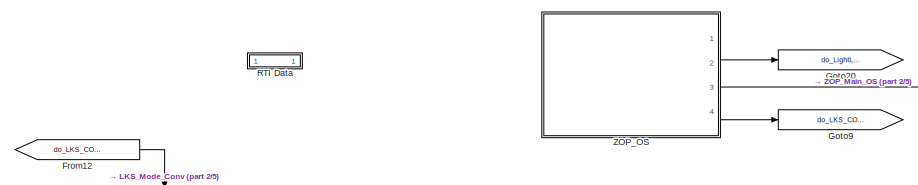
[diagram: root canvas - part 1/5, top center region]
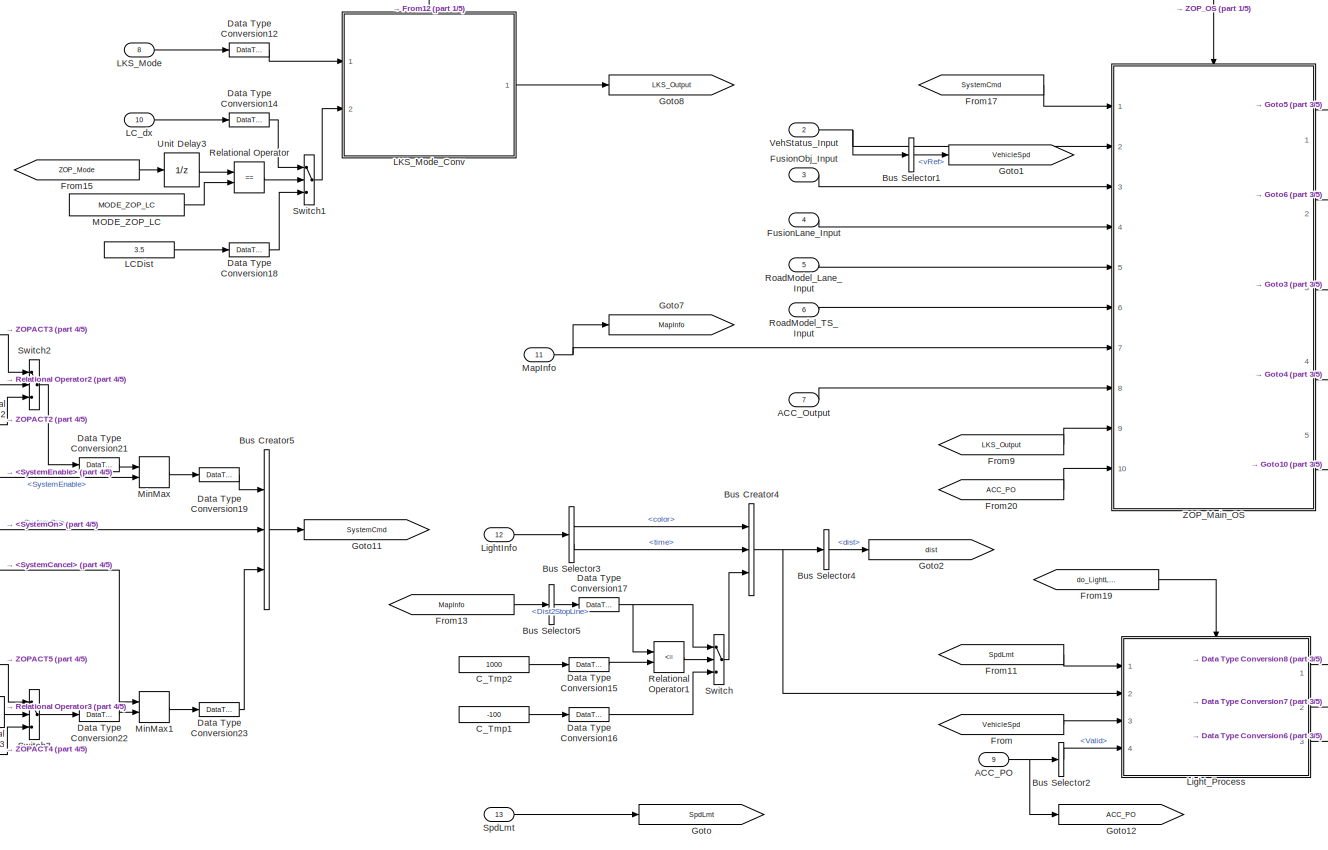
[diagram: root canvas - part 2/5, central region]
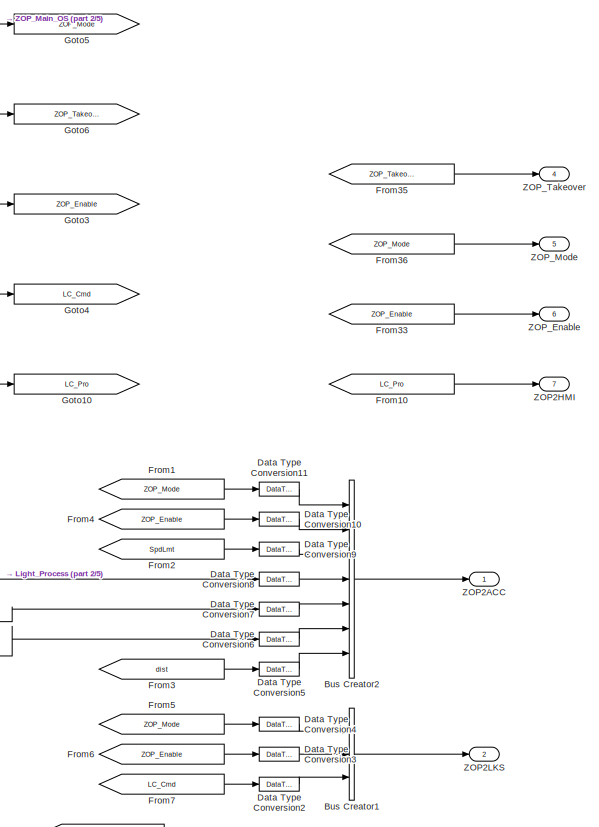
[diagram: root canvas - part 3/5, middle right region]
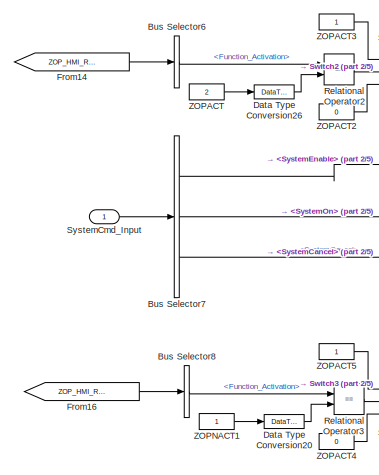
[diagram: root canvas - part 4/5, middle left region]
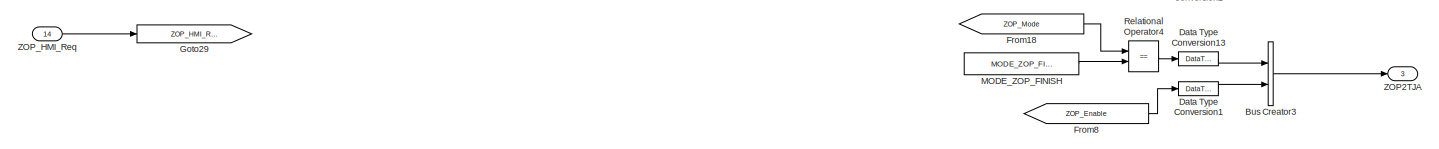
[diagram: root canvas - part 5/5, bottom center region]
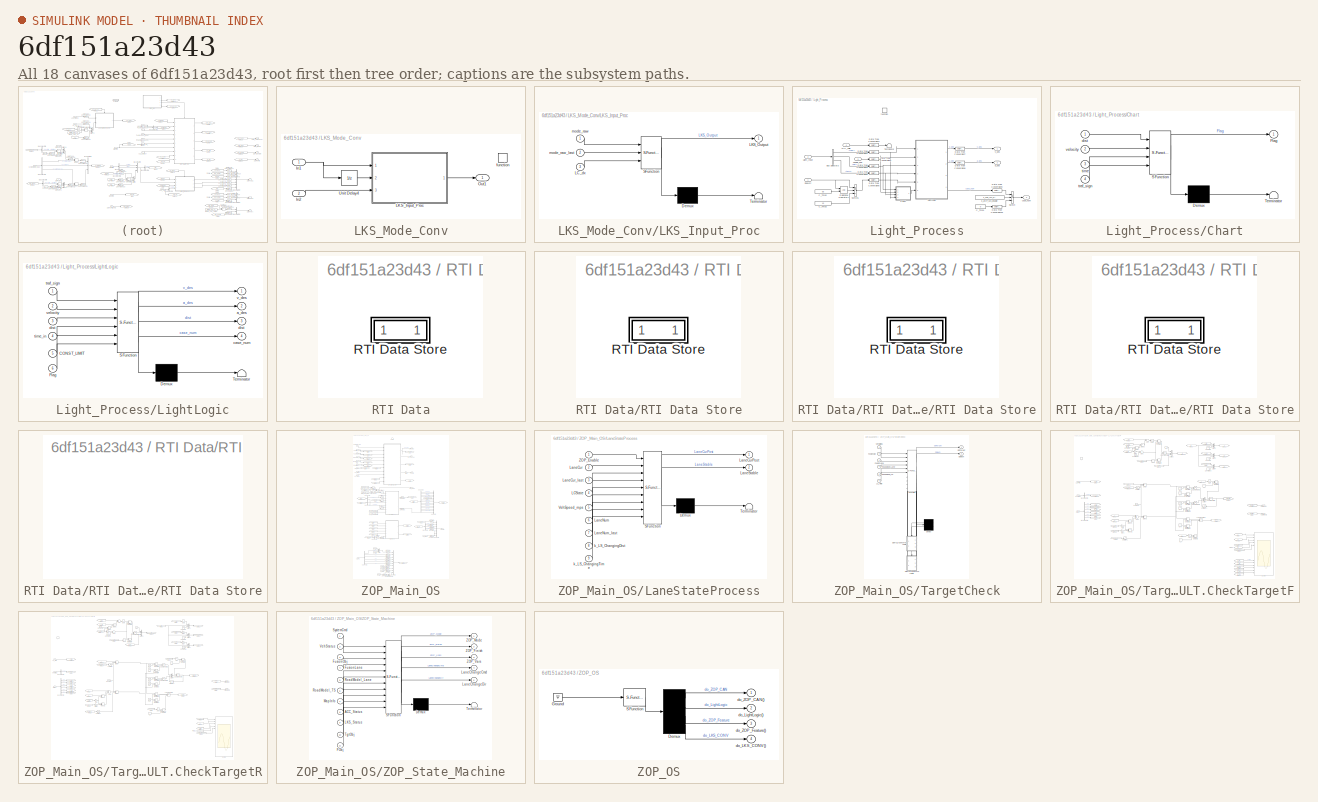
[diagram: thumbnail index - all 18 canvases of the model, root first then tree order]
MODEL slx_6df151a23d43
KIND model
CONFIG AbsTol = auto
CONFIG EnableMultiTasking = off
CONFIG FixedStep = 0.01
CONFIG MaxStep = auto
CONFIG MinStep = auto
CONFIG PostLoadFcn = if any(exist('dsrtsu_mdlpostloadfcn', 'file') ~= 0), dsrtsu_mdlpostloadfcn('Execute', bdroot); end
CONFIG RelTol = 1e-3
CONFIG SampleTimeConstraint = Unconstrained
CONFIG Solver = FixedStepDiscrete
CONFIG SolverName = FixedStepDiscrete
CONFIG StartTime = 0.0
CONFIG StopTime = inf
BLOCK [Inport] ACC_Output
  BusOutputAsStruct = on
  IconDisplay = Port number
  OutDataTypeStr = Bus: ACC_Status_ST
  Port = 7
BLOCK [Inport] ACC_PO
  BusOutputAsStruct = on
  IconDisplay = Port number
  OutDataTypeStr = Bus: ATS_PO_ST
  Port = 9
BLOCK [BusCreator] Bus Creator1
  DisplayOption = bar
  InheritFromInputs = off
  Inputs = 3
  NonVirtualBus = on
  OutDataTypeStr = Bus: ZOP2LCK
  Ports = [3, 1]
BLOCK [BusCreator] Bus Creator2
  DisplayOption = bar
  InheritFromInputs = off
  Inputs = 7
  NonVirtualBus = on
  OutDataTypeStr = Bus: ZOP2ACC
  Ports = [7, 1]
BLOCK [BusCreator] Bus Creator3
  DisplayOption = bar
  InheritFromInputs = off
  Inputs = 2
  NonVirtualBus = on
  OutDataTypeStr = Bus: ZOP2TJA
  Ports = [2, 1]
BLOCK [BusCreator] Bus Creator4
  DisplayOption = bar
  InheritFromInputs = off
  Inputs = 3
  NonVirtualBus = on
  OutDataTypeStr = Bus: Light_Info_ST
  Ports = [3, 1]
BLOCK [BusCreator] Bus Creator5
  DisplayOption = bar
  InheritFromInputs = off
  Inputs = 3
  NonVirtualBus = on
  OutDataTypeStr = Bus: SystemCmd_ST
  Ports = [3, 1]
BLOCK [BusSelector] Bus Selector1
  OutputAsBus = off
  OutputSignals = vRef
  Ports = [1, 1]
BLOCK [BusSelector] Bus Selector2
  OutputAsBus = off
  OutputSignals = Valid
  Ports = [1, 1]
BLOCK [BusSelector] Bus Selector3
  OutputAsBus = off
  OutputSignals = color,time
  Ports = [1, 2]
BLOCK [BusSelector] Bus Selector4
  OutputAsBus = off
  OutputSignals = dist
  Ports = [1, 1]
BLOCK [BusSelector] Bus Selector5
  OutputAsBus = off
  OutputSignals = Dist2StopLine
  Ports = [1, 1]
BLOCK [BusSelector] Bus Selector6
  OutputAsBus = off
  OutputSignals = Function_Activation
  Ports = [1, 1]
BLOCK [BusSelector] Bus Selector7
  OutputAsBus = off
  OutputSignals = SystemEnable,SystemOn,SystemCancel
  Ports = [1, 3]
BLOCK [BusSelector] Bus Selector8
  OutputAsBus = off
  OutputSignals = Function_Activation
  Ports = [1, 1]
BLOCK [Constant] C_Tmp1
  Value = -100
BLOCK [Constant] C_Tmp2
  Value = 1000
BLOCK [DataTypeConversion] Data Type Conversion1
  RndMeth = Floor
  SaturateOnIntegerOverflow = off
BLOCK [DataTypeConversion] Data Type Conversion10
  RndMeth = Floor
  SaturateOnIntegerOverflow = off
BLOCK [DataTypeConversion] Data Type Conversion11
  RndMeth = Floor
  SaturateOnIntegerOverflow = off
BLOCK [DataTypeConversion] Data Type Conversion12
  RndMeth = Floor
  SaturateOnIntegerOverflow = off
BLOCK [DataTypeConversion] Data Type Conversion13
  RndMeth = Floor
  SaturateOnIntegerOverflow = off
BLOCK [DataTypeConversion] Data Type Conversion14
  RndMeth = Floor
  SaturateOnIntegerOverflow = off
BLOCK [DataTypeConversion] Data Type Conversion15
  OutDataTypeStr = single
  RndMeth = Floor
  SaturateOnIntegerOverflow = off
BLOCK [DataTypeConversion] Data Type Conversion16
  OutDataTypeStr = single
  RndMeth = Floor
  SaturateOnIntegerOverflow = off
BLOCK [DataTypeConversion] Data Type Conversion17
  OutDataTypeStr = single
  RndMeth = Floor
  SaturateOnIntegerOverflow = off
BLOCK [DataTypeConversion] Data Type Conversion18
  RndMeth = Floor
  SaturateOnIntegerOverflow = off
BLOCK [DataTypeConversion] Data Type Conversion19
  OutDataTypeStr = uint8
  RndMeth = Floor
  SaturateOnIntegerOverflow = off
BLOCK [DataTypeConversion] Data Type Conversion2
  RndMeth = Floor
  SaturateOnIntegerOverflow = off
BLOCK [DataTypeConversion] Data Type Conversion20
  OutDataTypeStr = uint8
  RndMeth = Floor
  SaturateOnIntegerOverflow = off
BLOCK [DataTypeConversion] Data Type Conversion21
  OutDataTypeStr = uint8
  RndMeth = Floor
  SaturateOnIntegerOverflow = off
BLOCK [DataTypeConversion] Data Type Conversion22
  OutDataTypeStr = uint8
  RndMeth = Floor
  SaturateOnIntegerOverflow = off
BLOCK [DataTypeConversion] Data Type Conversion23
  OutDataTypeStr = uint8
  RndMeth = Floor
  SaturateOnIntegerOverflow = off
BLOCK [DataTypeConversion] Data Type Conversion26
  OutDataTypeStr = uint8
  RndMeth = Floor
  SaturateOnIntegerOverflow = off
BLOCK [DataTypeConversion] Data Type Conversion3
  RndMeth = Floor
  SaturateOnIntegerOverflow = off
BLOCK [DataTypeConversion] Data Type Conversion4
  RndMeth = Floor
  SaturateOnIntegerOverflow = off
BLOCK [DataTypeConversion] Data Type Conversion5
  RndMeth = Floor
  SaturateOnIntegerOverflow = off
BLOCK [DataTypeConversion] Data Type Conversion6
  RndMeth = Floor
  SaturateOnIntegerOverflow = off
BLOCK [DataTypeConversion] Data Type Conversion7
  RndMeth = Floor
  SaturateOnIntegerOverflow = off
BLOCK [DataTypeConversion] Data Type Conversion8
  RndMeth = Floor
  SaturateOnIntegerOverflow = off
BLOCK [DataTypeConversion] Data Type Conversion9
  RndMeth = Floor
  SaturateOnIntegerOverflow = off
BLOCK [From] From
  GotoTag = VehicleSpd
BLOCK [From] From1
  GotoTag = ZOP_Mode
BLOCK [From] From10
  GotoTag = LC_Pro
BLOCK [From] From11
  GotoTag = SpdLmt
BLOCK [From] From12
  GotoTag = do_LKS_CONV
BLOCK [From] From13
  GotoTag = MapInfo
BLOCK [From] From14
  GotoTag = ZOP_HMI_Req
BLOCK [From] From15
  GotoTag = ZOP_Mode
BLOCK [From] From16
  GotoTag = ZOP_HMI_Req
BLOCK [From] From17
  GotoTag = SystemCmd
BLOCK [From] From18
  GotoTag = ZOP_Mode
BLOCK [From] From19
  GotoTag = do_LightLogic
BLOCK [From] From2
  GotoTag = SpdLmt
BLOCK [From] From20
  GotoTag = ACC_PO
BLOCK [From] From3
  GotoTag = dist
BLOCK [From] From33
  GotoTag = ZOP_Enable
BLOCK [From] From35
  GotoTag = ZOP_Takeover
BLOCK [From] From36
  GotoTag = ZOP_Mode
BLOCK [From] From4
  GotoTag = ZOP_Enable
BLOCK [From] From5
  GotoTag = ZOP_Mode
BLOCK [From] From6
  GotoTag = ZOP_Enable
BLOCK [From] From7
  GotoTag = LC_Cmd
BLOCK [From] From8
  GotoTag = ZOP_Enable
BLOCK [From] From9
  GotoTag = LKS_Output
BLOCK [Inport] FusionLane_Input
  BusOutputAsStruct = on
  IconDisplay = Port number
  OutDataTypeStr = Bus: FUS_LANE_OUTPUT_ST
  Port = 4
BLOCK [Inport] FusionObj_Input
  BusOutputAsStruct = on
  IconDisplay = Port number
  OutDataTypeStr = Bus: FUS_OBJ_OUTPUT_ST
  Port = 3
BLOCK [Goto] Goto
  GotoTag = SpdLmt
BLOCK [Goto] Goto1
  GotoTag = VehicleSpd
BLOCK [Goto] Goto10
  GotoTag = LC_Pro
BLOCK [Goto] Goto11
  GotoTag = SystemCmd
BLOCK [Goto] Goto12
  GotoTag = ACC_PO
BLOCK [Goto] Goto2
  GotoTag = dist
BLOCK [Goto] Goto20
  GotoTag = do_LightLogic
BLOCK [Goto] Goto29
  GotoTag = ZOP_HMI_Req
BLOCK [Goto] Goto3
  GotoTag = ZOP_Enable
BLOCK [Goto] Goto4
  GotoTag = LC_Cmd
BLOCK [Goto] Goto5
  GotoTag = ZOP_Mode
BLOCK [Goto] Goto6
  GotoTag = ZOP_Takeover
BLOCK [Goto] Goto7
  GotoTag = MapInfo
BLOCK [Goto] Goto8
  GotoTag = LKS_Output
BLOCK [Goto] Goto9
  GotoTag = do_LKS_CONV
BLOCK [Constant] LCDist
  Value = 3.5
BLOCK [Inport] LC_dx
  BusOutputAsStruct = on
  IconDisplay = Port number
  Port = 10
BLOCK [Inport] LKS_Mode
  BusOutputAsStruct = on
  IconDisplay = Port number
  Port = 8
BLOCK [SubSystem] LKS_Mode_Conv
  Ports = [2, 1, 0, 1]
  RequestExecContextInheritance = off
BLOCK [Inport] LKS_Mode_Conv/In1
  IconDisplay = Port number
BLOCK [Inport] LKS_Mode_Conv/In2
  IconDisplay = Port number
  Port = 2
BLOCK [SubSystem] LKS_Mode_Conv/LKS_Input_Proc
  ErrorFcn = Stateflow.Translate.translate
  PermitHierarchicalResolution = ExplicitOnly
  Ports = [3, 1]
  RequestExecContextInheritance = off
  SFBlockType = MATLAB Function
  TreatAsAtomicUnit = on
BLOCK [Demux] LKS_Mode_Conv/LKS_Input_Proc/ Demux 
  Outputs = 1
  Ports = [1, 1]
BLOCK [S-Function] LKS_Mode_Conv/LKS_Input_Proc/ SFunction 
  EnableBusSupport = on
  FunctionName = sf_sfun
  PortCounts = [3 2]
  Ports = [3, 2]
  SFcnIsStateOwnerBlock = off
  SFunctionDeploymentMode = off
  Tag = Stateflow S-Function ZOP_Main_FObj 8
BLOCK [Terminator] LKS_Mode_Conv/LKS_Input_Proc/ Terminator 
BLOCK [Inport] LKS_Mode_Conv/LKS_Input_Proc/LC_dx
  IconDisplay = Port number
  Port = 3
BLOCK [Outport] LKS_Mode_Conv/LKS_Input_Proc/LKS_Output
  IconDisplay = Port number
BLOCK [Inport] LKS_Mode_Conv/LKS_Input_Proc/mode_raw
  IconDisplay = Port number
BLOCK [Inport] LKS_Mode_Conv/LKS_Input_Proc/mode_raw_last
  IconDisplay = Port number
  Port = 2
BLOCK [Outport] LKS_Mode_Conv/Out1
  IconDisplay = Port number
BLOCK [UnitDelay] LKS_Mode_Conv/Unit Delay4
  SampleTime = -1
BLOCK [TriggerPort] LKS_Mode_Conv/function
  Ports = []
  StatesWhenEnabling = held
  TriggerType = function-call
  VariantControl = Variant
BLOCK [Inport] LightInfo
  BusOutputAsStruct = on
  IconDisplay = Port number
  OutDataTypeStr = Bus: Light_Info_ST
  Port = 12
BLOCK [SubSystem] Light_Process
  Ports = [4, 3, 0, 1]
  RequestExecContextInheritance = off
BLOCK [Inport] Light_Process/ACC_Valid
  BusOutputAsStruct = on
  IconDisplay = Port number
  Port = 4
BLOCK [BusSelector] Light_Process/Bus Selector3
  OutputAsBus = off
  OutputSignals = color,dist,time
  Ports = [1, 3]
BLOCK [Constant] Light_Process/C_Tmp1
  Value = 0
BLOCK [Constant] Light_Process/C_Tmp2
  Value = 0.5
BLOCK [Constant] Light_Process/C_Tmp3
  Value = 15
BLOCK [SubSystem] Light_Process/Chart
  ErrorFcn = Stateflow.Translate.translate
  PermitHierarchicalResolution = ExplicitOnly
  Ports = [4, 1]
  RequestExecContextInheritance = off
  SFBlockType = Chart
  TreatAsAtomicUnit = on
BLOCK [Demux] Light_Process/Chart/ Demux 
  Outputs = 1
  Ports = [1, 1]
BLOCK [S-Function] Light_Process/Chart/ SFunction 
  EnableBusSupport = on
  FunctionName = sf_sfun
  PortCounts = [4 2]
  Ports = [4, 2]
  SFcnIsStateOwnerBlock = off
  SFunctionDeploymentMode = off
  Tag = Stateflow S-Function ZOP_Main_FObj 1
BLOCK [Terminator] Light_Process/Chart/ Terminator 
BLOCK [Outport] Light_Process/Chart/Flag
  IconDisplay = Port number
BLOCK [Inport] Light_Process/Chart/dist
  IconDisplay = Port number
BLOCK [Inport] Light_Process/Chart/time
  IconDisplay = Port number
  Port = 3
BLOCK [Inport] Light_Process/Chart/traf_sign
  IconDisplay = Port number
  Port = 4
BLOCK [Inport] Light_Process/Chart/velocity
  IconDisplay = Port number
  Port = 2
BLOCK [DataTypeConversion] Light_Process/Data Type Conversion1
  OutDataTypeStr = double
  RndMeth = Floor
  SaturateOnIntegerOverflow = off
BLOCK [DataTypeConversion] Light_Process/Data Type Conversion15
  RndMeth = Floor
  SaturateOnIntegerOverflow = off
BLOCK [DataTypeConversion] Light_Process/Data Type Conversion2
  OutDataTypeStr = double
  RndMeth = Floor
  SaturateOnIntegerOverflow = off
BLOCK [DataTypeConversion] Light_Process/Data Type Conversion3
  OutDataTypeStr = double
  RndMeth = Floor
  SaturateOnIntegerOverflow = off
BLOCK [DataTypeConversion] Light_Process/Data Type Conversion4
  OutDataTypeStr = double
  RndMeth = Floor
  SaturateOnIntegerOverflow = off
BLOCK [DataTypeConversion] Light_Process/Data Type Conversion5
  OutDataTypeStr = double
  RndMeth = Floor
  SaturateOnIntegerOverflow = off
BLOCK [DataTypeConversion] Light_Process/Data Type Conversion6
  OutDataTypeStr = double
  RndMeth = Floor
  SaturateOnIntegerOverflow = off
BLOCK [DataTypeConversion] Light_Process/Data Type Conversion7
  OutDataTypeStr = double
  RndMeth = Floor
  SaturateOnIntegerOverflow = off
BLOCK [DataTypeConversion] Light_Process/Data Type Conversion8
  OutDataTypeStr = double
  RndMeth = Floor
  SaturateOnIntegerOverflow = off
BLOCK [DataTypeConversion] Light_Process/Data Type Conversion9
  RndMeth = Floor
  SaturateOnIntegerOverflow = off
BLOCK [SubSystem] Light_Process/LightLogic
  ErrorFcn = Stateflow.Translate.translate
  PermitHierarchicalResolution = ExplicitOnly
  Ports = [6, 4]
  RequestExecContextInheritance = off
  SFBlockType = MATLAB Function
  TreatAsAtomicUnit = on
BLOCK [Demux] Light_Process/LightLogic/ Demux 
  Outputs = 1
  Ports = [1, 1]
BLOCK [S-Function] Light_Process/LightLogic/ SFunction 
  EnableBusSupport = on
  FunctionName = sf_sfun
  PortCounts = [6 5]
  Ports = [6, 5]
  SFcnIsStateOwnerBlock = off
  SFunctionDeploymentMode = off
  Tag = Stateflow S-Function ZOP_Main_FObj 9
BLOCK [Terminator] Light_Process/LightLogic/ Terminator 
BLOCK [Inport] Light_Process/LightLogic/CONST_LIMIT
  IconDisplay = Port number
  Port = 5
BLOCK [Inport] Light_Process/LightLogic/Flag
  IconDisplay = Port number
  Port = 6
BLOCK [Outport] Light_Process/LightLogic/a_des
  IconDisplay = Port number
  Port = 2
  VectorParamsAs1DForOutWhenUnconnected = on
BLOCK [Outport] Light_Process/LightLogic/case_num
  IconDisplay = Port number
  Port = 4
  VectorParamsAs1DForOutWhenUnconnected = on
BLOCK [Outport] Light_Process/LightLogic/dist
  IconDisplay = Port number
  Port = 3
  VectorParamsAs1DForOutWhenUnconnected = on
BLOCK [Inport] Light_Process/LightLogic/dist 
  IconDisplay = Port number
  Port = 3
BLOCK [Inport] Light_Process/LightLogic/time_in
  IconDisplay = Port number
  Port = 4
BLOCK [Inport] Light_Process/LightLogic/traf_sign
  IconDisplay = Port number
BLOCK [Outport] Light_Process/LightLogic/v_des
  IconDisplay = Port number
  VectorParamsAs1DForOutWhenUnconnected = on
BLOCK [Inport] Light_Process/LightLogic/velocity
  IconDisplay = Port number
  Port = 2
BLOCK [Inport] Light_Process/Light_Input
  BusOutputAsStruct = on
  IconDisplay = Port number
  OutDataTypeStr = Bus: Light_Info_ST
  Port = 2
BLOCK [RelationalOperator] Light_Process/Relational Operator1
  InputSameDT = off
  OutDataTypeStr = boolean
  Ports = [2, 1]
  RndMeth = Simplest
BLOCK [Inport] Light_Process/SpdLmt
  BusOutputAsStruct = on
  IconDisplay = Port number
BLOCK [Switch] Light_Process/Switch
  Criteria = u2 > Threshold
  InputSameDT = off
  SaturateOnIntegerOverflow = off
  Threshold = 0.5
BLOCK [Switch] Light_Process/Switch1
  Criteria = u2 > Threshold
  InputSameDT = off
  SaturateOnIntegerOverflow = off
  Threshold = 0.5
BLOCK [Terminator] Light_Process/Terminator
BLOCK [Outport] Light_Process/a_des
  IconDisplay = Port number
  Port = 2
BLOCK [Outport] Light_Process/case_num
  IconDisplay = Port number
  Port = 3
BLOCK [TriggerPort] Light_Process/function
  Ports = []
  StatesWhenEnabling = held
  TriggerType = function-call
  VariantControl = Variant
BLOCK [Constant] Light_Process/k_ZOP_V2X_Enable
  Value = k_ZOP_V2X_Enable
BLOCK [Outport] Light_Process/v_des
  IconDisplay = Port number
BLOCK [Inport] Light_Process/vehicle_spd
  BusOutputAsStruct = on
  IconDisplay = Port number
  Port = 3
BLOCK [Constant] MODE_ZOP_FINISH
  Value = MODE_ZOP_FINISH
BLOCK [Constant] MODE_ZOP_LC
  Value = MODE_ZOP_LC
BLOCK [Inport] MapInfo
  BusOutputAsStruct = on
  IconDisplay = Port number
  OutDataTypeStr = Bus: MapInfo_ST
  Port = 11
BLOCK [MinMax] MinMax
  Function = max
  InputSameDT = off
  Inputs = 2
  Ports = [2, 1]
  SaturateOnIntegerOverflow = off
BLOCK [MinMax] MinMax1
  Function = max
  InputSameDT = off
  Inputs = 2
  Ports = [2, 1]
  SaturateOnIntegerOverflow = off
BLOCK [SubSystem] RTI Data
  CopyFcn = if exist('rtidc'), try,  rtidc('DataHostBlockClbCopy', gcbh); catch, disp(['Warning: ''CopyFcn'' for RTI Data block failed: ' lasterr]); end, end,
  DeleteFcn = if exist('rtidc'), try,  rtidc('DataHostBlockClbDelete', gcbh); catch, disp(['Warning: ''DeleteFcn'' for RTI Data block failed: ' lasterr]); end, end,
  LoadFcn = if exist('rtidc'), try,  rtidc('DataHostBlockClbLoad', gcbh); catch, disp(['Warning: ''LoadFcn'' for RTI Data block failed: ' lasterr]); end, end,
  ModelCloseFcn = if exist('rtidc'), try,  rtidc('DataHostBlockClbModelClose', gcbh); catch, disp(['Warning: ''ModelCloseFcn'' for RTI Data block failed: ' lasterr]); end, end,
  NameChangeFcn = if exist('rtidc'), try,  rtidc('DataHostBlockClbNameChange', gcbh); catch, disp(['Warning: ''NameChangeFcn'' for RTI Data block failed: ' lasterr]); end, end,
  Ports = []
  PostSaveFcn = if exist('rtidc'), try,  rtidc('DataHostBlockClbPostSave', gcbh); catch, disp(['Warning: ''PostSaveFcn'' for RTI Data block failed: ' lasterr]); end, end,
  PreSaveFcn = if exist('rtidc'), try,  rtidc('DataHostBlockClbPreSave', gcbh); catch, disp(['Warning: ''PreSaveFcn'' for RTI Data block failed: ' lasterr]); end, end,
  RequestExecContextInheritance = off
  Tag = struct('RTIDataServer',struct('RTIDataServerVs','2','RTIModelDescription','struct(''main'',''ZOP_Main_FObj'',''sub'',''ZOP_Main_FObj'',''isMp'',0)'))
BLOCK [SubSystem] RTI Data/RTI Data Store
  Ports = []
  RequestExecContextInheritance = off
  Tag = struct('private',struct('version',struct('dsVer',uint32(2),'dsVerCreation',uint32(2),'RTI',struct('ver','7.12','type','RTI1401')),'access',struct('type','Model','isPerm',1,'created',['30-Dec-2020 11:01:12'],'modified',['20-Jan-2021 14:41:58'],'location','')),'public',struct('main',struct('data',[]),'sub',struct('name',{{'ZOP_Main_FObj'}},'data',{{struct('TH',struct('thTaskInfo',struct('taskType',{...<+887ch>
BLOCK [SubSystem] RTI Data/RTI Data Store/RTI Data Store
  Ports = []
  RequestExecContextInheritance = off
BLOCK [SubSystem] RTI Data/RTI Data Store/RTI Data Store/RTI Data Store
  Ports = []
  RequestExecContextInheritance = off
BLOCK [SubSystem] RTI Data/RTI Data Store/RTI Data Store/RTI Data Store/RTI Data Store
  Ports = []
  RequestExecContextInheritance = off
BLOCK [RelationalOperator] Relational Operator
  InputSameDT = off
  Operator = ==
  OutDataTypeStr = boolean
  Ports = [2, 1]
  RndMeth = Simplest
BLOCK [RelationalOperator] Relational Operator1
  InputSameDT = off
  Operator = <=
  OutDataTypeStr = boolean
  Ports = [2, 1]
  RndMeth = Simplest
BLOCK [RelationalOperator] Relational Operator2
  InputSameDT = off
  Operator = ==
  OutDataTypeStr = boolean
  Ports = [2, 1]
  RndMeth = Simplest
BLOCK [RelationalOperator] Relational Operator3
  InputSameDT = off
  Operator = ==
  OutDataTypeStr = boolean
  Ports = [2, 1]
  RndMeth = Simplest
BLOCK [RelationalOperator] Relational Operator4
  InputSameDT = off
  Operator = ==
  OutDataTypeStr = boolean
  Ports = [2, 1]
  RndMeth = Simplest
BLOCK [Inport] RoadModel_Lane_Input
  BusOutputAsStruct = on
  IconDisplay = Port number
  OutDataTypeStr = Bus: LANEMODEL_OUTPUT_ST
  Port = 5
BLOCK [Inport] RoadModel_TS_Input
  BusOutputAsStruct = on
  IconDisplay = Port number
  OutDataTypeStr = Bus: HWA_TARGETOBJECT_OUTPUT_ST
  Port = 6
BLOCK [Inport] SpdLmt
  BusOutputAsStruct = on
  IconDisplay = Port number
  Port = 13
BLOCK [Switch] Switch
  Criteria = u2 > Threshold
  InputSameDT = off
  SaturateOnIntegerOverflow = off
  Threshold = 0.5
BLOCK [Switch] Switch1
  Criteria = u2 > Threshold
  InputSameDT = off
  SaturateOnIntegerOverflow = off
  Threshold = 0.5
BLOCK [Switch] Switch2
  Criteria = u2 > Threshold
  InputSameDT = off
  SaturateOnIntegerOverflow = off
  Threshold = 0.5
BLOCK [Switch] Switch3
  Criteria = u2 > Threshold
  InputSameDT = off
  SaturateOnIntegerOverflow = off
  Threshold = 0.5
BLOCK [Inport] SystemCmd_Input
  BusOutputAsStruct = on
  IconDisplay = Port number
  OutDataTypeStr = Bus: SystemCmd_ST
BLOCK [UnitDelay] Unit Delay3
  SampleTime = -1
BLOCK [Inport] VehStatus_Input
  BusOutputAsStruct = on
  IconDisplay = Port number
  OutDataTypeStr = Bus: VSI_VEHSTATE_ST
  Port = 2
BLOCK [Outport] ZOP2ACC
  IconDisplay = Port number
  OutDataTypeStr = Bus: ZOP2ACC
BLOCK [Outport] ZOP2HMI
  IconDisplay = Port number
  OutDataTypeStr = Bus: ZOP2HMI
  Port = 7
BLOCK [Outport] ZOP2LKS
  IconDisplay = Port number
  OutDataTypeStr = Bus: ZOP2LCK
  Port = 2
BLOCK [Outport] ZOP2TJA
  IconDisplay = Port number
  OutDataTypeStr = Bus: ZOP2TJA
  Port = 3
BLOCK [Constant] ZOPACT
  Value = 2
BLOCK [Constant] ZOPACT2
  Value = 0
BLOCK [Constant] ZOPACT3
BLOCK [Constant] ZOPACT4
  Value = 0
BLOCK [Constant] ZOPACT5
BLOCK [Constant] ZOPNACT1
BLOCK [Outport] ZOP_Enable
  IconDisplay = Port number
  Port = 6
BLOCK [Inport] ZOP_HMI_Req
  BusOutputAsStruct = on
  IconDisplay = Port number
  OutDataTypeStr = Bus: ZOP_HMI_REQ
  Port = 14
BLOCK [SubSystem] ZOP_Main_OS
  Ports = [10, 5, 0, 1]
  RequestExecContextInheritance = off
BLOCK [Inport] ZOP_Main_OS/ACC_Output
  BusOutputAsStruct = on
  IconDisplay = Port number
  OutDataTypeStr = Bus: ACC_Status_ST
  Port = 8
BLOCK [Inport] ZOP_Main_OS/ACC_PO
  BusOutputAsStruct = on
  IconDisplay = Port number
  OutDataTypeStr = Bus: ATS_PO_ST
  Port = 10
BLOCK [BusCreator] ZOP_Main_OS/Bus Creator1
  DisplayOption = bar
  InheritFromInputs = off
  Inputs = 14
  NonVirtualBus = on
  OutDataTypeStr = Bus: MapInfo_ST_Post
  Ports = [14, 1]
BLOCK [BusCreator] ZOP_Main_OS/Bus Creator2
  DisplayOption = bar
  InheritFromInputs = off
  Inputs = 7
  NonVirtualBus = on
  OutDataTypeStr = Bus: ZOP2HMI
  Ports = [7, 1]
BLOCK [BusCreator] ZOP_Main_OS/Bus Creator3
  DisplayOption = bar
  InheritFromInputs = off
  Inputs = 10
  NonVirtualBus = on
  OutDataTypeStr = Bus: ZOP_Object_ST
  Ports = [10, 1]
BLOCK [BusSelector] ZOP_Main_OS/Bus Selector1
  OutputAsBus = off
  OutputSignals = vRef
  Ports = [1, 1]
BLOCK [BusSelector] ZOP_Main_OS/Bus Selector2
  OutputAsBus = off
  OutputSignals = LaneNum,MapFlag,TgtSpd,isInZopZone,LaneIndex,LocIndex,Dist2Dest,Dist2Start,Dist2StopLine,Dist2Merge,LocLat,LocLon,SpeedLimit
  Ports = [1, 13]
BLOCK [BusSelector] ZOP_Main_OS/Bus Selector3
  OutputAsBus = off
  OutputSignals = LaneIndex,LaneNum
  Ports = [1, 2]
BLOCK [BusSelector] ZOP_Main_OS/Bus Selector4
  OutputAsBus = off
  OutputSignals = LCTime
  Ports = [1, 1]
BLOCK [BusSelector] ZOP_Main_OS/Bus Selector5
  OutputAsBus = off
  OutputSignals = LCRes,LCTip,LCFailTip
  Ports = [1, 3]
BLOCK [BusSelector] ZOP_Main_OS/Bus Selector6
  OutputAsBus = off
  OutputSignals = Valid,dx,dy,vx,vy,ax
  Ports = [1, 6]
BLOCK [Constant] ZOP_Main_OS/C_Tmp1
  Value = 0
BLOCK [Constant] ZOP_Main_OS/C_Tmp2
BLOCK [Constant] ZOP_Main_OS/C_Tmp3
  Value = 0
BLOCK [Constant] ZOP_Main_OS/C_Tmp4
  Value = 0
BLOCK [Constant] ZOP_Main_OS/C_Tmp5
  Value = 0
BLOCK [Constant] ZOP_Main_OS/C_Tmp6
  Value = 0
BLOCK [Constant] ZOP_Main_OS/C_Tmp7
  Value = 0
BLOCK [DataTypeConversion] ZOP_Main_OS/Data Type Conversion1
  RndMeth = Floor
  SaturateOnIntegerOverflow = off
BLOCK [DataTypeConversion] ZOP_Main_OS/Data Type Conversion10
  RndMeth = Floor
  SaturateOnIntegerOverflow = off
BLOCK [DataTypeConversion] ZOP_Main_OS/Data Type Conversion11
  RndMeth = Floor
  SaturateOnIntegerOverflow = off
BLOCK [DataTypeConversion] ZOP_Main_OS/Data Type Conversion12
  RndMeth = Floor
  SaturateOnIntegerOverflow = off
BLOCK [DataTypeConversion] ZOP_Main_OS/Data Type Conversion13
  RndMeth = Floor
  SaturateOnIntegerOverflow = off
BLOCK [DataTypeConversion] ZOP_Main_OS/Data Type Conversion14
  RndMeth = Floor
  SaturateOnIntegerOverflow = off
BLOCK [DataTypeConversion] ZOP_Main_OS/Data Type Conversion15
  RndMeth = Floor
  SaturateOnIntegerOverflow = off
BLOCK [DataTypeConversion] ZOP_Main_OS/Data Type Conversion16
  RndMeth = Floor
  SaturateOnIntegerOverflow = off
BLOCK [DataTypeConversion] ZOP_Main_OS/Data Type Conversion17
  RndMeth = Floor
  SaturateOnIntegerOverflow = off
BLOCK [DataTypeConversion] ZOP_Main_OS/Data Type Conversion18
  OutDataTypeStr = int8
  RndMeth = Floor
  SaturateOnIntegerOverflow = off
BLOCK [DataTypeConversion] ZOP_Main_OS/Data Type Conversion2
  RndMeth = Floor
  SaturateOnIntegerOverflow = off
BLOCK [DataTypeConversion] ZOP_Main_OS/Data Type Conversion3
  RndMeth = Floor
  SaturateOnIntegerOverflow = off
BLOCK [DataTypeConversion] ZOP_Main_OS/Data Type Conversion4
  RndMeth = Floor
  SaturateOnIntegerOverflow = off
BLOCK [DataTypeConversion] ZOP_Main_OS/Data Type Conversion5
  RndMeth = Floor
  SaturateOnIntegerOverflow = off
BLOCK [DataTypeConversion] ZOP_Main_OS/Data Type Conversion6
  RndMeth = Floor
  SaturateOnIntegerOverflow = off
BLOCK [DataTypeConversion] ZOP_Main_OS/Data Type Conversion7
  RndMeth = Floor
  SaturateOnIntegerOverflow = off
BLOCK [DataTypeConversion] ZOP_Main_OS/Data Type Conversion8
  RndMeth = Floor
  SaturateOnIntegerOverflow = off
BLOCK [DataTypeConversion] ZOP_Main_OS/Data Type Conversion9
  RndMeth = Floor
  SaturateOnIntegerOverflow = off
BLOCK [From] ZOP_Main_OS/From
  GotoTag = MapInfo
BLOCK [From] ZOP_Main_OS/From1
  GotoTag = VehicleStatus
BLOCK [From] ZOP_Main_OS/From10
  GotoTag = RM_Lane
BLOCK [From] ZOP_Main_OS/From11
  GotoTag = RM_TS
BLOCK [From] ZOP_Main_OS/From12
  GotoTag = ZOP_Vars
BLOCK [From] ZOP_Main_OS/From13
  GotoTag = ObjTarget
BLOCK [From] ZOP_Main_OS/From14
  GotoTag = ZOP_Vars
BLOCK [From] ZOP_Main_OS/From15
  GotoTag = LC_Dir
BLOCK [From] ZOP_Main_OS/From16
  GotoTag = FObj
BLOCK [From] ZOP_Main_OS/From2
  GotoTag = MapInfo
BLOCK [From] ZOP_Main_OS/From3
  GotoTag = LaneCurPost
BLOCK [From] ZOP_Main_OS/From4
  GotoTag = MapInfoPost
BLOCK [From] ZOP_Main_OS/From5
  GotoTag = ZOP_Mode
BLOCK [From] ZOP_Main_OS/From6
  GotoTag = ZOP_Mode
BLOCK [From] ZOP_Main_OS/From7
  GotoTag = VehicleStatus
BLOCK [From] ZOP_Main_OS/From8
  GotoTag = FusionObj
BLOCK [From] ZOP_Main_OS/From9
  GotoTag = FusionLane
BLOCK [Inport] ZOP_Main_OS/FusionLane_Input
  BusOutputAsStruct = on
  IconDisplay = Port number
  OutDataTypeStr = Bus: FUS_LANE_OUTPUT_ST
  Port = 4
BLOCK [Inport] ZOP_Main_OS/FusionObj_Input
  BusOutputAsStruct = on
  IconDisplay = Port number
  OutDataTypeStr = Bus: FUS_OBJ_OUTPUT_ST
  Port = 3
BLOCK [Gain] ZOP_Main_OS/Gain
  Gain = -1
  OutDataTypeStr = Inherit: Inherit via internal rule
  ParamDataTypeStr = Inherit: Inherit via internal rule
  SaturateOnIntegerOverflow = off
BLOCK [Goto] ZOP_Main_OS/Goto
  GotoTag = MapInfo
BLOCK [Goto] ZOP_Main_OS/Goto1
  GotoTag = ZOP_Mode
BLOCK [Goto] ZOP_Main_OS/Goto10
  GotoTag = ObjTarget
BLOCK [Goto] ZOP_Main_OS/Goto11
  GotoTag = ObjNum
BLOCK [Goto] ZOP_Main_OS/Goto12
  GotoTag = LC_Dir
BLOCK [Goto] ZOP_Main_OS/Goto13
  GotoTag = FObj
BLOCK [Goto] ZOP_Main_OS/Goto2
  GotoTag = VehicleStatus
BLOCK [Goto] ZOP_Main_OS/Goto3
  GotoTag = MapInfoPost
BLOCK [Goto] ZOP_Main_OS/Goto4
  GotoTag = FusionObj
BLOCK [Goto] ZOP_Main_OS/Goto5
  GotoTag = FusionLane
BLOCK [Goto] ZOP_Main_OS/Goto6
  GotoTag = LaneCurPost
BLOCK [Goto] ZOP_Main_OS/Goto7
  GotoTag = RM_Lane
BLOCK [Goto] ZOP_Main_OS/Goto8
  GotoTag = RM_TS
BLOCK [Goto] ZOP_Main_OS/Goto9
  GotoTag = ZOP_Vars
BLOCK [Outport] ZOP_Main_OS/LC_Cmd
  IconDisplay = Port number
  Port = 4
BLOCK [Inport] ZOP_Main_OS/LKS_Output
  BusOutputAsStruct = on
  IconDisplay = Port number
  OutDataTypeStr = Bus: LKS_Status_ST
  Port = 9
BLOCK [SubSystem] ZOP_Main_OS/LaneStateProcess
  ErrorFcn = Stateflow.Translate.translate
  PermitHierarchicalResolution = ExplicitOnly
  Ports = [9, 2]
  RequestExecContextInheritance = off
  SFBlockType = Chart
  TreatAsAtomicUnit = on
BLOCK [Demux] ZOP_Main_OS/LaneStateProcess/ Demux 
  Outputs = 1
  Ports = [1, 1]
BLOCK [S-Function] ZOP_Main_OS/LaneStateProcess/ SFunction 
  EnableBusSupport = on
  FunctionName = sf_sfun
  Parameters = MODE_ZOP_LC
  PortCounts = [9 3]
  Ports = [9, 3]
  SFcnIsStateOwnerBlock = off
  SFunctionDeploymentMode = off
  Tag = Stateflow S-Function ZOP_Main_FObj 4
BLOCK [Terminator] ZOP_Main_OS/LaneStateProcess/ Terminator 
BLOCK [Inport] ZOP_Main_OS/LaneStateProcess/LCState
  IconDisplay = Port number
  Port = 4
BLOCK [Inport] ZOP_Main_OS/LaneStateProcess/LaneCur
  IconDisplay = Port number
  Port = 2
BLOCK [Outport] ZOP_Main_OS/LaneStateProcess/LaneCurPost
  IconDisplay = Port number
BLOCK [Inport] ZOP_Main_OS/LaneStateProcess/LaneCur_last
  IconDisplay = Port number
  Port = 3
BLOCK [Inport] ZOP_Main_OS/LaneStateProcess/LaneNum
  IconDisplay = Port number
  Port = 6
BLOCK [Inport] ZOP_Main_OS/LaneStateProcess/LaneNum_last
  IconDisplay = Port number
  Port = 7
BLOCK [Outport] ZOP_Main_OS/LaneStateProcess/LaneStable
  IconDisplay = Port number
  Port = 2
BLOCK [Inport] ZOP_Main_OS/LaneStateProcess/VehSpeed_mps
  IconDisplay = Port number
  Port = 5
BLOCK [Inport] ZOP_Main_OS/LaneStateProcess/ZOP_Enable
  IconDisplay = Port number
BLOCK [Inport] ZOP_Main_OS/LaneStateProcess/k_LS_ChangingDist
  IconDisplay = Port number
  Port = 8
BLOCK [Inport] ZOP_Main_OS/LaneStateProcess/k_LS_ChangingTime
  IconDisplay = Port number
  Port = 9
BLOCK [Logic] ZOP_Main_OS/Logical Operator
  AllPortsSameDT = off
  OutDataTypeStr = boolean
  Ports = [2, 1]
BLOCK [Constant] ZOP_Main_OS/MODE_ZOP_ACTIVE
  Value = MODE_ZOP_ACTIVE
BLOCK [Constant] ZOP_Main_OS/MODE_ZOP_FINISH
  Value = MODE_ZOP_FINISH
BLOCK [Inport] ZOP_Main_OS/Map_Input
  BusOutputAsStruct = on
  IconDisplay = Port number
  OutDataTypeStr = Bus: MapInfo_ST
  Port = 7
BLOCK [RelationalOperator] ZOP_Main_OS/Relational Operator
  InputSameDT = off
  Operator = <=
  OutDataTypeStr = boolean
  Ports = [2, 1]
  RndMeth = Simplest
BLOCK [RelationalOperator] ZOP_Main_OS/Relational Operator1
  InputSameDT = off
  Operator = <=
  OutDataTypeStr = boolean
  Ports = [2, 1]
  RndMeth = Simplest
BLOCK [Inport] ZOP_Main_OS/RoadModel_Lane_Input
  BusOutputAsStruct = on
  IconDisplay = Port number
  OutDataTypeStr = Bus: LANEMODEL_OUTPUT_ST
  Port = 5
BLOCK [Inport] ZOP_Main_OS/RoadModel_TS_Input
  BusOutputAsStruct = on
  IconDisplay = Port number
  OutDataTypeStr = Bus: HWA_TARGETOBJECT_OUTPUT_ST
  Port = 6
BLOCK [Switch] ZOP_Main_OS/Switch
  Criteria = u2 > Threshold
  InputSameDT = off
  SaturateOnIntegerOverflow = off
  Threshold = 0.5
BLOCK [Inport] ZOP_Main_OS/SystemCmd_Input
  BusOutputAsStruct = on
  IconDisplay = Port number
  OutDataTypeStr = Bus: SystemCmd_ST
BLOCK [SubSystem] ZOP_Main_OS/TargetCheck
  ErrorFcn = Stateflow.Translate.translate
  PermitHierarchicalResolution = ExplicitOnly
  Ports = [6, 2]
  RequestExecContextInheritance = off
  SFBlockType = Chart
  TreatAsAtomicUnit = on
BLOCK [Demux] ZOP_Main_OS/TargetCheck/ Demux 
  Outputs = 2
  Ports = [1, 2]
BLOCK [S-Function] ZOP_Main_OS/TargetCheck/ SFunction 
  EnableBusSupport = on
  FunctionName = sf_sfun
  PortCounts = [10 9]
  Ports = [10, 9]
  SFcnIsStateOwnerBlock = off
  SFunctionDeploymentMode = off
  Tag = Stateflow S-Function ZOP_Main_FObj 5
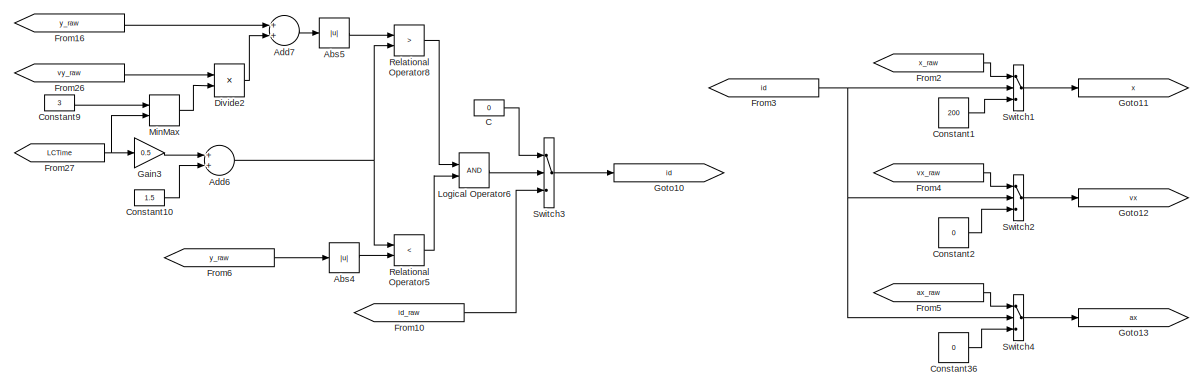
[diagram: ZOP_Main_OS/TargetCheck/DEFAULT.CheckTargetF - part 1/4, top center region]
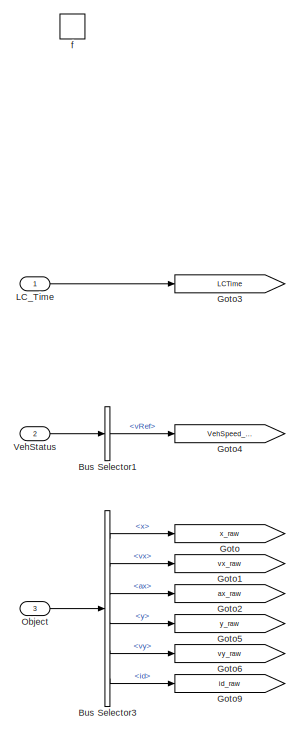
[diagram: ZOP_Main_OS/TargetCheck/DEFAULT.CheckTargetF - part 2/4, middle left region]
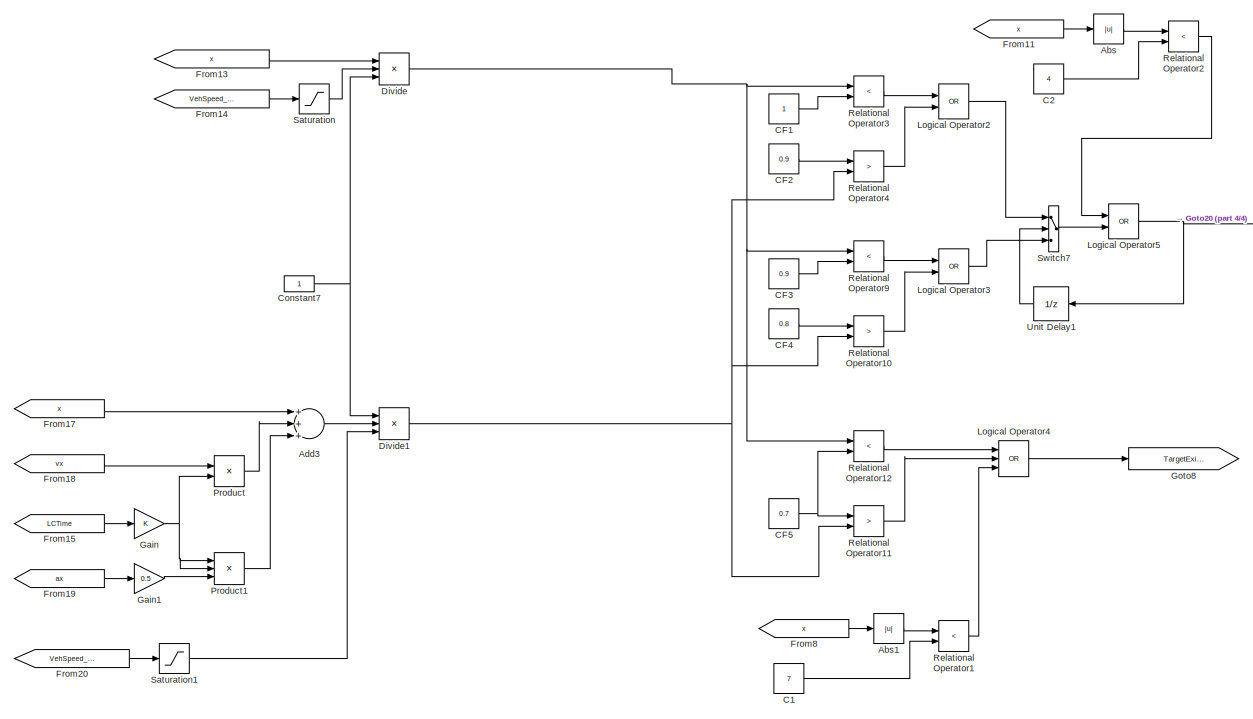
[diagram: ZOP_Main_OS/TargetCheck/DEFAULT.CheckTargetF - part 3/4, central region]
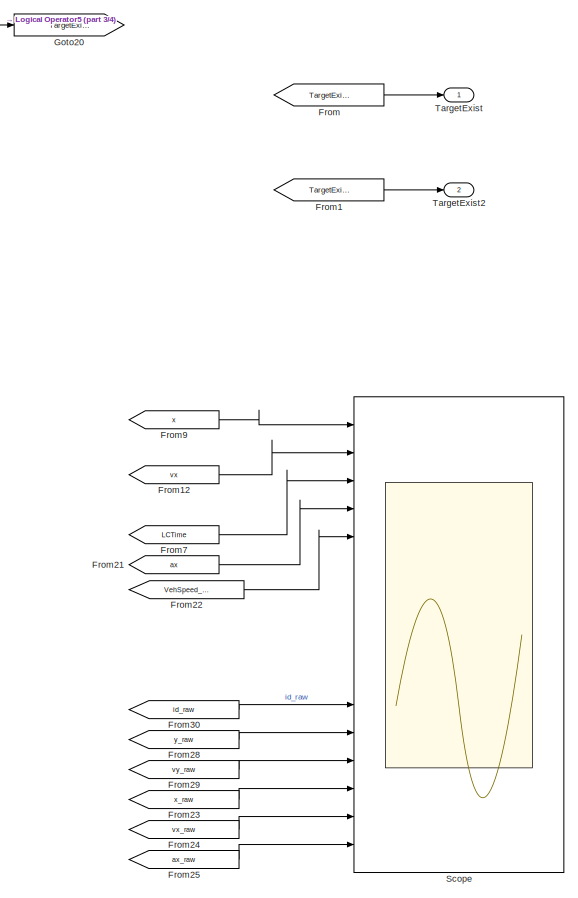
[diagram: ZOP_Main_OS/TargetCheck/DEFAULT.CheckTargetF - part 4/4, bottom right region]
BLOCK [SubSystem] ZOP_Main_OS/TargetCheck/DEFAULT.CheckTargetF
  Ports = [3, 2, 0, 1]
  PreDeleteFcn = Stateflow.SLINSF.SimulinkMan.removePreDeleteFcn
  RequestExecContextInheritance = off
  UndoDeleteFcn = Stateflow.SLINSF.SimulinkMan.restorePreDeleteFcn
BLOCK [Abs] ZOP_Main_OS/TargetCheck/DEFAULT.CheckTargetF/Abs
  SaturateOnIntegerOverflow = off
BLOCK [Abs] ZOP_Main_OS/TargetCheck/DEFAULT.CheckTargetF/Abs1
  SaturateOnIntegerOverflow = off
BLOCK [Abs] ZOP_Main_OS/TargetCheck/DEFAULT.CheckTargetF/Abs4
  SaturateOnIntegerOverflow = off
BLOCK [Abs] ZOP_Main_OS/TargetCheck/DEFAULT.CheckTargetF/Abs5
  SaturateOnIntegerOverflow = off
BLOCK [Sum] ZOP_Main_OS/TargetCheck/DEFAULT.CheckTargetF/Add3
  InputSameDT = off
  Inputs = +++
  OutDataTypeStr = Inherit: Inherit via internal rule
  Ports = [3, 1]
  SaturateOnIntegerOverflow = off
BLOCK [Sum] ZOP_Main_OS/TargetCheck/DEFAULT.CheckTargetF/Add6
  InputSameDT = off
  OutDataTypeStr = Inherit: Inherit via internal rule
  Ports = [2, 1]
  SaturateOnIntegerOverflow = off
BLOCK [Sum] ZOP_Main_OS/TargetCheck/DEFAULT.CheckTargetF/Add7
  InputSameDT = off
  OutDataTypeStr = Inherit: Inherit via internal rule
  Ports = [2, 1]
  SaturateOnIntegerOverflow = off
BLOCK [BusSelector] ZOP_Main_OS/TargetCheck/DEFAULT.CheckTargetF/Bus Selector1
  OutputAsBus = off
  OutputSignals = vRef
  Ports = [1, 1]
BLOCK [BusSelector] ZOP_Main_OS/TargetCheck/DEFAULT.CheckTargetF/Bus Selector3
  OutputAsBus = off
  OutputSignals = x,vx,ax,y,vy,id
  Ports = [1, 6]
BLOCK [Constant] ZOP_Main_OS/TargetCheck/DEFAULT.CheckTargetF/C
  Value = 0
BLOCK [Constant] ZOP_Main_OS/TargetCheck/DEFAULT.CheckTargetF/C1
  Value = 7
BLOCK [Constant] ZOP_Main_OS/TargetCheck/DEFAULT.CheckTargetF/C2
  Value = 4
BLOCK [Constant] ZOP_Main_OS/TargetCheck/DEFAULT.CheckTargetF/CF1
BLOCK [Constant] ZOP_Main_OS/TargetCheck/DEFAULT.CheckTargetF/CF2
  Value = 0.9
BLOCK [Constant] ZOP_Main_OS/TargetCheck/DEFAULT.CheckTargetF/CF3
  Value = 0.9
BLOCK [Constant] ZOP_Main_OS/TargetCheck/DEFAULT.CheckTargetF/CF4
  Value = 0.8
BLOCK [Constant] ZOP_Main_OS/TargetCheck/DEFAULT.CheckTargetF/CF5
  Value = 0.7
BLOCK [Constant] ZOP_Main_OS/TargetCheck/DEFAULT.CheckTargetF/Constant1
  Value = 200
BLOCK [Constant] ZOP_Main_OS/TargetCheck/DEFAULT.CheckTargetF/Constant10
  Value = 1.5
BLOCK [Constant] ZOP_Main_OS/TargetCheck/DEFAULT.CheckTargetF/Constant2
  Value = 0
BLOCK [Constant] ZOP_Main_OS/TargetCheck/DEFAULT.CheckTargetF/Constant36
  Value = 0
BLOCK [Constant] ZOP_Main_OS/TargetCheck/DEFAULT.CheckTargetF/Constant7
BLOCK [Constant] ZOP_Main_OS/TargetCheck/DEFAULT.CheckTargetF/Constant9
  Value = 3
BLOCK [Product] ZOP_Main_OS/TargetCheck/DEFAULT.CheckTargetF/Divide
  InputSameDT = off
  Inputs = */*
  OutDataTypeStr = Inherit: Inherit via internal rule
  Ports = [3, 1]
  RndMeth = Floor
  SaturateOnIntegerOverflow = off
BLOCK [Product] ZOP_Main_OS/TargetCheck/DEFAULT.CheckTargetF/Divide1
  InputSameDT = off
  Inputs = **/
  OutDataTypeStr = Inherit: Inherit via internal rule
  Ports = [3, 1]
  RndMeth = Floor
  SaturateOnIntegerOverflow = off
BLOCK [Product] ZOP_Main_OS/TargetCheck/DEFAULT.CheckTargetF/Divide2
  InputSameDT = off
  Inputs = **
  OutDataTypeStr = Inherit: Inherit via internal rule
  Ports = [2, 1]
  RndMeth = Floor
  SaturateOnIntegerOverflow = off
BLOCK [From] ZOP_Main_OS/TargetCheck/DEFAULT.CheckTargetF/From
  GotoTag = TargetExist
BLOCK [From] ZOP_Main_OS/TargetCheck/DEFAULT.CheckTargetF/From1
  GotoTag = TargetExist2
BLOCK [From] ZOP_Main_OS/TargetCheck/DEFAULT.CheckTargetF/From10
  GotoTag = id_raw
BLOCK [From] ZOP_Main_OS/TargetCheck/DEFAULT.CheckTargetF/From11
  GotoTag = x
BLOCK [From] ZOP_Main_OS/TargetCheck/DEFAULT.CheckTargetF/From12
  Commented = on
  GotoTag = vx
BLOCK [From] ZOP_Main_OS/TargetCheck/DEFAULT.CheckTargetF/From13
  GotoTag = x
BLOCK [From] ZOP_Main_OS/TargetCheck/DEFAULT.CheckTargetF/From14
  GotoTag = VehSpeed_mps
BLOCK [From] ZOP_Main_OS/TargetCheck/DEFAULT.CheckTargetF/From15
  GotoTag = LCTime
BLOCK [From] ZOP_Main_OS/TargetCheck/DEFAULT.CheckTargetF/From16
  GotoTag = y_raw
BLOCK [From] ZOP_Main_OS/TargetCheck/DEFAULT.CheckTargetF/From17
  GotoTag = x
BLOCK [From] ZOP_Main_OS/TargetCheck/DEFAULT.CheckTargetF/From18
  GotoTag = vx
BLOCK [From] ZOP_Main_OS/TargetCheck/DEFAULT.CheckTargetF/From19
  GotoTag = ax
BLOCK [From] ZOP_Main_OS/TargetCheck/DEFAULT.CheckTargetF/From2
  GotoTag = x_raw
BLOCK [From] ZOP_Main_OS/TargetCheck/DEFAULT.CheckTargetF/From20
  GotoTag = VehSpeed_mps
BLOCK [From] ZOP_Main_OS/TargetCheck/DEFAULT.CheckTargetF/From21
  Commented = on
  GotoTag = ax
BLOCK [From] ZOP_Main_OS/TargetCheck/DEFAULT.CheckTargetF/From22
  Commented = on
  GotoTag = VehSpeed_mps
BLOCK [From] ZOP_Main_OS/TargetCheck/DEFAULT.CheckTargetF/From23
  Commented = on
  GotoTag = x_raw
BLOCK [From] ZOP_Main_OS/TargetCheck/DEFAULT.CheckTargetF/From24
  Commented = on
  GotoTag = vx_raw
BLOCK [From] ZOP_Main_OS/TargetCheck/DEFAULT.CheckTargetF/From25
  Commented = on
  GotoTag = ax_raw
BLOCK [From] ZOP_Main_OS/TargetCheck/DEFAULT.CheckTargetF/From26
  GotoTag = vy_raw
BLOCK [From] ZOP_Main_OS/TargetCheck/DEFAULT.CheckTargetF/From27
  GotoTag = LCTime
BLOCK [From] ZOP_Main_OS/TargetCheck/DEFAULT.CheckTargetF/From28
  Commented = on
  GotoTag = y_raw
BLOCK [From] ZOP_Main_OS/TargetCheck/DEFAULT.CheckTargetF/From29
  Commented = on
  GotoTag = vy_raw
BLOCK [From] ZOP_Main_OS/TargetCheck/DEFAULT.CheckTargetF/From3
  GotoTag = id
BLOCK [From] ZOP_Main_OS/TargetCheck/DEFAULT.CheckTargetF/From30
  Commented = on
  GotoTag = id_raw
BLOCK [From] ZOP_Main_OS/TargetCheck/DEFAULT.CheckTargetF/From4
  GotoTag = vx_raw
BLOCK [From] ZOP_Main_OS/TargetCheck/DEFAULT.CheckTargetF/From5
  GotoTag = ax_raw
BLOCK [From] ZOP_Main_OS/TargetCheck/DEFAULT.CheckTargetF/From6
  GotoTag = y_raw
BLOCK [From] ZOP_Main_OS/TargetCheck/DEFAULT.CheckTargetF/From7
  Commented = on
  GotoTag = LCTime
BLOCK [From] ZOP_Main_OS/TargetCheck/DEFAULT.CheckTargetF/From8
  GotoTag = x
BLOCK [From] ZOP_Main_OS/TargetCheck/DEFAULT.CheckTargetF/From9
  Commented = on
  GotoTag = x
BLOCK [Gain] ZOP_Main_OS/TargetCheck/DEFAULT.CheckTargetF/Gain
  OutDataTypeStr = Inherit: Inherit via internal rule
  ParamDataTypeStr = Inherit: Inherit via internal rule
  SaturateOnIntegerOverflow = off
BLOCK [Gain] ZOP_Main_OS/TargetCheck/DEFAULT.CheckTargetF/Gain1
  Gain = 0.5
  OutDataTypeStr = Inherit: Inherit via internal rule
  ParamDataTypeStr = Inherit: Inherit via internal rule
  SaturateOnIntegerOverflow = off
BLOCK [Gain] ZOP_Main_OS/TargetCheck/DEFAULT.CheckTargetF/Gain3
  Gain = 0.5
  OutDataTypeStr = Inherit: Inherit via internal rule
  ParamDataTypeStr = Inherit: Inherit via internal rule
  SaturateOnIntegerOverflow = off
BLOCK [Goto] ZOP_Main_OS/TargetCheck/DEFAULT.CheckTargetF/Goto
  GotoTag = x_raw
BLOCK [Goto] ZOP_Main_OS/TargetCheck/DEFAULT.CheckTargetF/Goto1
  GotoTag = vx_raw
BLOCK [Goto] ZOP_Main_OS/TargetCheck/DEFAULT.CheckTargetF/Goto10
  GotoTag = id
BLOCK [Goto] ZOP_Main_OS/TargetCheck/DEFAULT.CheckTargetF/Goto11
  GotoTag = x
BLOCK [Goto] ZOP_Main_OS/TargetCheck/DEFAULT.CheckTargetF/Goto12
  GotoTag = vx
BLOCK [Goto] ZOP_Main_OS/TargetCheck/DEFAULT.CheckTargetF/Goto13
  GotoTag = ax
BLOCK [Goto] ZOP_Main_OS/TargetCheck/DEFAULT.CheckTargetF/Goto2
  GotoTag = ax_raw
BLOCK [Goto] ZOP_Main_OS/TargetCheck/DEFAULT.CheckTargetF/Goto20
  GotoTag = TargetExist
BLOCK [Goto] ZOP_Main_OS/TargetCheck/DEFAULT.CheckTargetF/Goto3
  GotoTag = LCTime
BLOCK [Goto] ZOP_Main_OS/TargetCheck/DEFAULT.CheckTargetF/Goto4
  GotoTag = VehSpeed_mps
BLOCK [Goto] ZOP_Main_OS/TargetCheck/DEFAULT.CheckTargetF/Goto5
  GotoTag = y_raw
BLOCK [Goto] ZOP_Main_OS/TargetCheck/DEFAULT.CheckTargetF/Goto6
  GotoTag = vy_raw
BLOCK [Goto] ZOP_Main_OS/TargetCheck/DEFAULT.CheckTargetF/Goto8
  GotoTag = TargetExist2
BLOCK [Goto] ZOP_Main_OS/TargetCheck/DEFAULT.CheckTargetF/Goto9
  GotoTag = id_raw
BLOCK [Inport] ZOP_Main_OS/TargetCheck/DEFAULT.CheckTargetF/LC_Time
  IconDisplay = Port number
  OutDataTypeStr = double
BLOCK [Logic] ZOP_Main_OS/TargetCheck/DEFAULT.CheckTargetF/Logical Operator2
  AllPortsSameDT = off
  Operator = OR
  OutDataTypeStr = boolean
  Ports = [2, 1]
BLOCK [Logic] ZOP_Main_OS/TargetCheck/DEFAULT.CheckTargetF/Logical Operator3
  AllPortsSameDT = off
  Operator = OR
  OutDataTypeStr = boolean
  Ports = [2, 1]
BLOCK [Logic] ZOP_Main_OS/TargetCheck/DEFAULT.CheckTargetF/Logical Operator4
  AllPortsSameDT = off
  Inputs = 3
  Operator = OR
  OutDataTypeStr = boolean
  Ports = [3, 1]
BLOCK [Logic] ZOP_Main_OS/TargetCheck/DEFAULT.CheckTargetF/Logical Operator5
  AllPortsSameDT = off
  Operator = OR
  OutDataTypeStr = boolean
  Ports = [2, 1]
BLOCK [Logic] ZOP_Main_OS/TargetCheck/DEFAULT.CheckTargetF/Logical Operator6
  AllPortsSameDT = off
  OutDataTypeStr = boolean
  Ports = [2, 1]
BLOCK [MinMax] ZOP_Main_OS/TargetCheck/DEFAULT.CheckTargetF/MinMax
  InputSameDT = off
  Inputs = 2
  Ports = [2, 1]
  SaturateOnIntegerOverflow = off
BLOCK [Inport] ZOP_Main_OS/TargetCheck/DEFAULT.CheckTargetF/Object
  IconDisplay = Port number
  OutDataTypeStr = Bus: ZOP_Object_ST
  Port = 3
BLOCK [Product] ZOP_Main_OS/TargetCheck/DEFAULT.CheckTargetF/Product
  InputSameDT = off
  OutDataTypeStr = Inherit: Inherit via internal rule
  Ports = [2, 1]
  RndMeth = Floor
  SaturateOnIntegerOverflow = off
BLOCK [Product] ZOP_Main_OS/TargetCheck/DEFAULT.CheckTargetF/Product1
  InputSameDT = off
  Inputs = 3
  OutDataTypeStr = Inherit: Inherit via internal rule
  Ports = [3, 1]
  RndMeth = Floor
  SaturateOnIntegerOverflow = off
BLOCK [RelationalOperator] ZOP_Main_OS/TargetCheck/DEFAULT.CheckTargetF/Relational Operator1
  InputSameDT = off
  Operator = <
  Ports = [2, 1]
BLOCK [RelationalOperator] ZOP_Main_OS/TargetCheck/DEFAULT.CheckTargetF/Relational Operator10
  InputSameDT = off
  Operator = >
  Ports = [2, 1]
BLOCK [RelationalOperator] ZOP_Main_OS/TargetCheck/DEFAULT.CheckTargetF/Relational Operator11
  InputSameDT = off
  Operator = >
  Ports = [2, 1]
BLOCK [RelationalOperator] ZOP_Main_OS/TargetCheck/DEFAULT.CheckTargetF/Relational Operator12
  InputSameDT = off
  Operator = <
  Ports = [2, 1]
BLOCK [RelationalOperator] ZOP_Main_OS/TargetCheck/DEFAULT.CheckTargetF/Relational Operator2
  InputSameDT = off
  Operator = <
  Ports = [2, 1]
BLOCK [RelationalOperator] ZOP_Main_OS/TargetCheck/DEFAULT.CheckTargetF/Relational Operator3
  InputSameDT = off
  Operator = <
  Ports = [2, 1]
BLOCK [RelationalOperator] ZOP_Main_OS/TargetCheck/DEFAULT.CheckTargetF/Relational Operator4
  InputSameDT = off
  Operator = >
  Ports = [2, 1]
BLOCK [RelationalOperator] ZOP_Main_OS/TargetCheck/DEFAULT.CheckTargetF/Relational Operator5
  InputSameDT = off
  Operator = <
  Ports = [2, 1]
BLOCK [RelationalOperator] ZOP_Main_OS/TargetCheck/DEFAULT.CheckTargetF/Relational Operator8
  InputSameDT = off
  Operator = >
  Ports = [2, 1]
BLOCK [RelationalOperator] ZOP_Main_OS/TargetCheck/DEFAULT.CheckTargetF/Relational Operator9
  InputSameDT = off
  Operator = <
  Ports = [2, 1]
BLOCK [Saturate] ZOP_Main_OS/TargetCheck/DEFAULT.CheckTargetF/Saturation
  InputPortMap = u0
  LowerLimit = 0.1
  Ports = [1, 1]
  UpperLimit = 100
BLOCK [Saturate] ZOP_Main_OS/TargetCheck/DEFAULT.CheckTargetF/Saturation1
  InputPortMap = u0
  LowerLimit = 0.1
  Ports = [1, 1]
  UpperLimit = 100
BLOCK [Scope] ZOP_Main_OS/TargetCheck/DEFAULT.CheckTargetF/Scope
  Commented = on
  Floating = off
  NumInputPorts = 16
  Ports = [16]
  ScopeSpecificationString = Simulink.scopes.TimeScopeBlockCfg('CurrentConfiguration', extmgr.ConfigurationSet(extmgr.Configuration('Core','General UI',true),extmgr.Configuration('Core','Source UI',true),extmgr.Configuration('Sources','WiredSimulink',true,'DataLoggingVariableName','ScopeData3'),extmgr.Configuration('Visuals','Time Domain',true,'SerializedDisplays',{struct('MinYLimReal','-17.125','MaxYLimReal','224.125','YLabe...<+11834ch>
BLOCK [Switch] ZOP_Main_OS/TargetCheck/DEFAULT.CheckTargetF/Switch1
  Criteria = u2 > Threshold
  InputSameDT = off
  SaturateOnIntegerOverflow = off
  Threshold = 0.5
BLOCK [Switch] ZOP_Main_OS/TargetCheck/DEFAULT.CheckTargetF/Switch2
  Criteria = u2 > Threshold
  InputSameDT = off
  SaturateOnIntegerOverflow = off
  Threshold = 0.5
BLOCK [Switch] ZOP_Main_OS/TargetCheck/DEFAULT.CheckTargetF/Switch3
  Criteria = u2 > Threshold
  InputSameDT = off
  SaturateOnIntegerOverflow = off
  Threshold = 0.5
BLOCK [Switch] ZOP_Main_OS/TargetCheck/DEFAULT.CheckTargetF/Switch4
  Criteria = u2 > Threshold
  InputSameDT = off
  SaturateOnIntegerOverflow = off
  Threshold = 0.5
BLOCK [Switch] ZOP_Main_OS/TargetCheck/DEFAULT.CheckTargetF/Switch7
  Criteria = u2 > Threshold
  InputSameDT = off
  SaturateOnIntegerOverflow = off
  Threshold = 0.5
BLOCK [Outport] ZOP_Main_OS/TargetCheck/DEFAULT.CheckTargetF/TargetExist
  IconDisplay = Port number
BLOCK [Outport] ZOP_Main_OS/TargetCheck/DEFAULT.CheckTargetF/TargetExist2
  IconDisplay = Port number
  Port = 2
BLOCK [UnitDelay] ZOP_Main_OS/TargetCheck/DEFAULT.CheckTargetF/Unit Delay1
  SampleTime = -1
BLOCK [Inport] ZOP_Main_OS/TargetCheck/DEFAULT.CheckTargetF/VehStatus
  IconDisplay = Port number
  OutDataTypeStr = Bus: VSI_VEHSTATE_ST
  Port = 2
BLOCK [TriggerPort] ZOP_Main_OS/TargetCheck/DEFAULT.CheckTargetF/f
  CopyFcn = Stateflow.SLINSF.SimulinkMan.removeBlockPreDeleteFcn
  Ports = []
  PreDeleteFcn = Stateflow.SLINSF.SimulinkMan.unsafePredeleteFcn
  StatesWhenEnabling = held
  TriggerType = function-call
  VariantControl = (inherit)
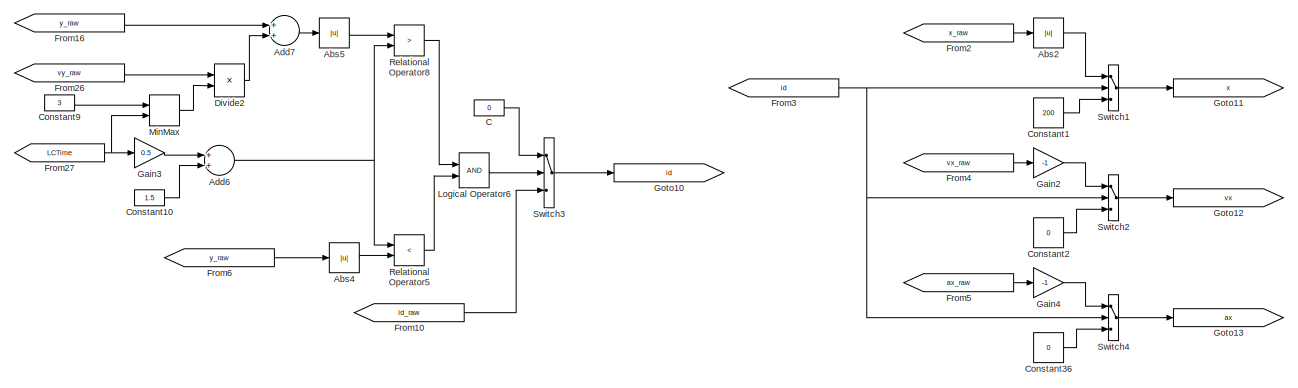
[diagram: ZOP_Main_OS/TargetCheck/DEFAULT.CheckTargetR - part 1/5, top center region]
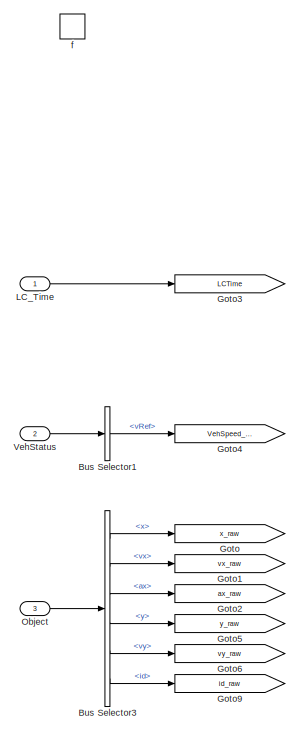
[diagram: ZOP_Main_OS/TargetCheck/DEFAULT.CheckTargetR - part 2/5, middle left region]
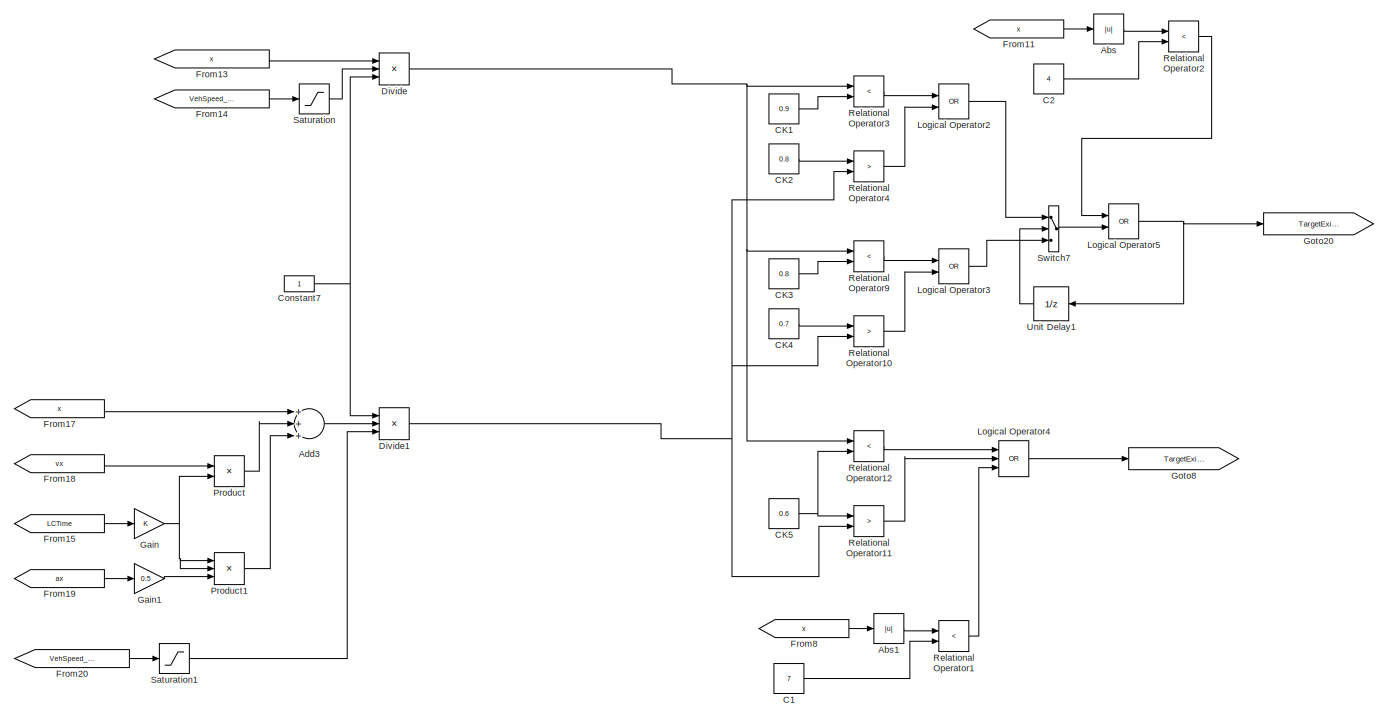
[diagram: ZOP_Main_OS/TargetCheck/DEFAULT.CheckTargetR - part 3/5, central region]
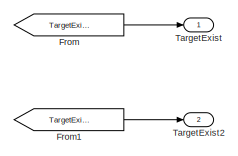
[diagram: ZOP_Main_OS/TargetCheck/DEFAULT.CheckTargetR - part 4/5, middle right region]
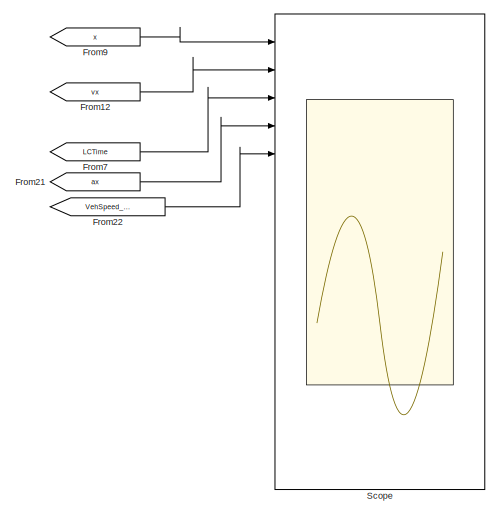
[diagram: ZOP_Main_OS/TargetCheck/DEFAULT.CheckTargetR - part 5/5, bottom right region]
BLOCK [SubSystem] ZOP_Main_OS/TargetCheck/DEFAULT.CheckTargetR
  Ports = [3, 2, 0, 1]
  PreDeleteFcn = Stateflow.SLINSF.SimulinkMan.removePreDeleteFcn
  RequestExecContextInheritance = off
  UndoDeleteFcn = Stateflow.SLINSF.SimulinkMan.restorePreDeleteFcn
BLOCK [Abs] ZOP_Main_OS/TargetCheck/DEFAULT.CheckTargetR/Abs
  SaturateOnIntegerOverflow = off
BLOCK [Abs] ZOP_Main_OS/TargetCheck/DEFAULT.CheckTargetR/Abs1
  SaturateOnIntegerOverflow = off
BLOCK [Abs] ZOP_Main_OS/TargetCheck/DEFAULT.CheckTargetR/Abs2
  SaturateOnIntegerOverflow = off
BLOCK [Abs] ZOP_Main_OS/TargetCheck/DEFAULT.CheckTargetR/Abs4
  SaturateOnIntegerOverflow = off
BLOCK [Abs] ZOP_Main_OS/TargetCheck/DEFAULT.CheckTargetR/Abs5
  SaturateOnIntegerOverflow = off
BLOCK [Sum] ZOP_Main_OS/TargetCheck/DEFAULT.CheckTargetR/Add3
  InputSameDT = off
  Inputs = +++
  OutDataTypeStr = Inherit: Inherit via internal rule
  Ports = [3, 1]
  SaturateOnIntegerOverflow = off
BLOCK [Sum] ZOP_Main_OS/TargetCheck/DEFAULT.CheckTargetR/Add6
  InputSameDT = off
  OutDataTypeStr = Inherit: Inherit via internal rule
  Ports = [2, 1]
  SaturateOnIntegerOverflow = off
BLOCK [Sum] ZOP_Main_OS/TargetCheck/DEFAULT.CheckTargetR/Add7
  InputSameDT = off
  OutDataTypeStr = Inherit: Inherit via internal rule
  Ports = [2, 1]
  SaturateOnIntegerOverflow = off
BLOCK [BusSelector] ZOP_Main_OS/TargetCheck/DEFAULT.CheckTargetR/Bus Selector1
  OutputAsBus = off
  OutputSignals = vRef
  Ports = [1, 1]
BLOCK [BusSelector] ZOP_Main_OS/TargetCheck/DEFAULT.CheckTargetR/Bus Selector3
  OutputAsBus = off
  OutputSignals = x,vx,ax,y,vy,id
  Ports = [1, 6]
BLOCK [Constant] ZOP_Main_OS/TargetCheck/DEFAULT.CheckTargetR/C
  Value = 0
BLOCK [Constant] ZOP_Main_OS/TargetCheck/DEFAULT.CheckTargetR/C1
  Value = 7
BLOCK [Constant] ZOP_Main_OS/TargetCheck/DEFAULT.CheckTargetR/C2
  Value = 4
BLOCK [Constant] ZOP_Main_OS/TargetCheck/DEFAULT.CheckTargetR/CK1
  Value = 0.9
BLOCK [Constant] ZOP_Main_OS/TargetCheck/DEFAULT.CheckTargetR/CK2
  Value = 0.8
BLOCK [Constant] ZOP_Main_OS/TargetCheck/DEFAULT.CheckTargetR/CK3
  Value = 0.8
BLOCK [Constant] ZOP_Main_OS/TargetCheck/DEFAULT.CheckTargetR/CK4
  Value = 0.7
BLOCK [Constant] ZOP_Main_OS/TargetCheck/DEFAULT.CheckTargetR/CK5
  Value = 0.6
BLOCK [Constant] ZOP_Main_OS/TargetCheck/DEFAULT.CheckTargetR/Constant1
  Value = 200
BLOCK [Constant] ZOP_Main_OS/TargetCheck/DEFAULT.CheckTargetR/Constant10
  Value = 1.5
BLOCK [Constant] ZOP_Main_OS/TargetCheck/DEFAULT.CheckTargetR/Constant2
  Value = 0
BLOCK [Constant] ZOP_Main_OS/TargetCheck/DEFAULT.CheckTargetR/Constant36
  Value = 0
BLOCK [Constant] ZOP_Main_OS/TargetCheck/DEFAULT.CheckTargetR/Constant7
BLOCK [Constant] ZOP_Main_OS/TargetCheck/DEFAULT.CheckTargetR/Constant9
  Value = 3
BLOCK [Product] ZOP_Main_OS/TargetCheck/DEFAULT.CheckTargetR/Divide
  InputSameDT = off
  Inputs = */*
  OutDataTypeStr = Inherit: Inherit via internal rule
  Ports = [3, 1]
  RndMeth = Floor
  SaturateOnIntegerOverflow = off
BLOCK [Product] ZOP_Main_OS/TargetCheck/DEFAULT.CheckTargetR/Divide1
  InputSameDT = off
  Inputs = **/
  OutDataTypeStr = Inherit: Inherit via internal rule
  Ports = [3, 1]
  RndMeth = Floor
  SaturateOnIntegerOverflow = off
BLOCK [Product] ZOP_Main_OS/TargetCheck/DEFAULT.CheckTargetR/Divide2
  InputSameDT = off
  Inputs = **
  OutDataTypeStr = Inherit: Inherit via internal rule
  Ports = [2, 1]
  RndMeth = Floor
  SaturateOnIntegerOverflow = off
BLOCK [From] ZOP_Main_OS/TargetCheck/DEFAULT.CheckTargetR/From
  GotoTag = TargetExist
BLOCK [From] ZOP_Main_OS/TargetCheck/DEFAULT.CheckTargetR/From1
  GotoTag = TargetExist2
BLOCK [From] ZOP_Main_OS/TargetCheck/DEFAULT.CheckTargetR/From10
  GotoTag = id_raw
BLOCK [From] ZOP_Main_OS/TargetCheck/DEFAULT.CheckTargetR/From11
  GotoTag = x
BLOCK [From] ZOP_Main_OS/TargetCheck/DEFAULT.CheckTargetR/From12
  Commented = on
  GotoTag = vx
BLOCK [From] ZOP_Main_OS/TargetCheck/DEFAULT.CheckTargetR/From13
  GotoTag = x
BLOCK [From] ZOP_Main_OS/TargetCheck/DEFAULT.CheckTargetR/From14
  GotoTag = VehSpeed_mps
BLOCK [From] ZOP_Main_OS/TargetCheck/DEFAULT.CheckTargetR/From15
  GotoTag = LCTime
BLOCK [From] ZOP_Main_OS/TargetCheck/DEFAULT.CheckTargetR/From16
  GotoTag = y_raw
BLOCK [From] ZOP_Main_OS/TargetCheck/DEFAULT.CheckTargetR/From17
  GotoTag = x
BLOCK [From] ZOP_Main_OS/TargetCheck/DEFAULT.CheckTargetR/From18
  GotoTag = vx
BLOCK [From] ZOP_Main_OS/TargetCheck/DEFAULT.CheckTargetR/From19
  GotoTag = ax
BLOCK [From] ZOP_Main_OS/TargetCheck/DEFAULT.CheckTargetR/From2
  GotoTag = x_raw
BLOCK [From] ZOP_Main_OS/TargetCheck/DEFAULT.CheckTargetR/From20
  GotoTag = VehSpeed_mps
BLOCK [From] ZOP_Main_OS/TargetCheck/DEFAULT.CheckTargetR/From21
  Commented = on
  GotoTag = ax
BLOCK [From] ZOP_Main_OS/TargetCheck/DEFAULT.CheckTargetR/From22
  Commented = on
  GotoTag = VehSpeed_mps
BLOCK [From] ZOP_Main_OS/TargetCheck/DEFAULT.CheckTargetR/From26
  GotoTag = vy_raw
BLOCK [From] ZOP_Main_OS/TargetCheck/DEFAULT.CheckTargetR/From27
  GotoTag = LCTime
BLOCK [From] ZOP_Main_OS/TargetCheck/DEFAULT.CheckTargetR/From3
  GotoTag = id
BLOCK [From] ZOP_Main_OS/TargetCheck/DEFAULT.CheckTargetR/From4
  GotoTag = vx_raw
BLOCK [From] ZOP_Main_OS/TargetCheck/DEFAULT.CheckTargetR/From5
  GotoTag = ax_raw
BLOCK [From] ZOP_Main_OS/TargetCheck/DEFAULT.CheckTargetR/From6
  GotoTag = y_raw
BLOCK [From] ZOP_Main_OS/TargetCheck/DEFAULT.CheckTargetR/From7
  Commented = on
  GotoTag = LCTime
BLOCK [From] ZOP_Main_OS/TargetCheck/DEFAULT.CheckTargetR/From8
  GotoTag = x
BLOCK [From] ZOP_Main_OS/TargetCheck/DEFAULT.CheckTargetR/From9
  Commented = on
  GotoTag = x
BLOCK [Gain] ZOP_Main_OS/TargetCheck/DEFAULT.CheckTargetR/Gain
  OutDataTypeStr = Inherit: Inherit via internal rule
  ParamDataTypeStr = Inherit: Inherit via internal rule
  SaturateOnIntegerOverflow = off
BLOCK [Gain] ZOP_Main_OS/TargetCheck/DEFAULT.CheckTargetR/Gain1
  Gain = 0.5
  OutDataTypeStr = Inherit: Inherit via internal rule
  ParamDataTypeStr = Inherit: Inherit via internal rule
  SaturateOnIntegerOverflow = off
BLOCK [Gain] ZOP_Main_OS/TargetCheck/DEFAULT.CheckTargetR/Gain2
  Gain = -1
  OutDataTypeStr = Inherit: Inherit via internal rule
  ParamDataTypeStr = Inherit: Inherit via internal rule
  SaturateOnIntegerOverflow = off
BLOCK [Gain] ZOP_Main_OS/TargetCheck/DEFAULT.CheckTargetR/Gain3
  Gain = 0.5
  OutDataTypeStr = Inherit: Inherit via internal rule
  ParamDataTypeStr = Inherit: Inherit via internal rule
  SaturateOnIntegerOverflow = off
BLOCK [Gain] ZOP_Main_OS/TargetCheck/DEFAULT.CheckTargetR/Gain4
  Gain = -1
  OutDataTypeStr = Inherit: Inherit via internal rule
  ParamDataTypeStr = Inherit: Inherit via internal rule
  SaturateOnIntegerOverflow = off
BLOCK [Goto] ZOP_Main_OS/TargetCheck/DEFAULT.CheckTargetR/Goto
  GotoTag = x_raw
BLOCK [Goto] ZOP_Main_OS/TargetCheck/DEFAULT.CheckTargetR/Goto1
  GotoTag = vx_raw
BLOCK [Goto] ZOP_Main_OS/TargetCheck/DEFAULT.CheckTargetR/Goto10
  GotoTag = id
BLOCK [Goto] ZOP_Main_OS/TargetCheck/DEFAULT.CheckTargetR/Goto11
  GotoTag = x
BLOCK [Goto] ZOP_Main_OS/TargetCheck/DEFAULT.CheckTargetR/Goto12
  GotoTag = vx
BLOCK [Goto] ZOP_Main_OS/TargetCheck/DEFAULT.CheckTargetR/Goto13
  GotoTag = ax
BLOCK [Goto] ZOP_Main_OS/TargetCheck/DEFAULT.CheckTargetR/Goto2
  GotoTag = ax_raw
BLOCK [Goto] ZOP_Main_OS/TargetCheck/DEFAULT.CheckTargetR/Goto20
  GotoTag = TargetExist
BLOCK [Goto] ZOP_Main_OS/TargetCheck/DEFAULT.CheckTargetR/Goto3
  GotoTag = LCTime
BLOCK [Goto] ZOP_Main_OS/TargetCheck/DEFAULT.CheckTargetR/Goto4
  GotoTag = VehSpeed_mps
BLOCK [Goto] ZOP_Main_OS/TargetCheck/DEFAULT.CheckTargetR/Goto5
  GotoTag = y_raw
BLOCK [Goto] ZOP_Main_OS/TargetCheck/DEFAULT.CheckTargetR/Goto6
  GotoTag = vy_raw
BLOCK [Goto] ZOP_Main_OS/TargetCheck/DEFAULT.CheckTargetR/Goto8
  GotoTag = TargetExist2
BLOCK [Goto] ZOP_Main_OS/TargetCheck/DEFAULT.CheckTargetR/Goto9
  GotoTag = id_raw
BLOCK [Inport] ZOP_Main_OS/TargetCheck/DEFAULT.CheckTargetR/LC_Time
  IconDisplay = Port number
  OutDataTypeStr = double
BLOCK [Logic] ZOP_Main_OS/TargetCheck/DEFAULT.CheckTargetR/Logical Operator2
  AllPortsSameDT = off
  Operator = OR
  OutDataTypeStr = boolean
  Ports = [2, 1]
BLOCK [Logic] ZOP_Main_OS/TargetCheck/DEFAULT.CheckTargetR/Logical Operator3
  AllPortsSameDT = off
  Operator = OR
  OutDataTypeStr = boolean
  Ports = [2, 1]
BLOCK [Logic] ZOP_Main_OS/TargetCheck/DEFAULT.CheckTargetR/Logical Operator4
  AllPortsSameDT = off
  Inputs = 3
  Operator = OR
  OutDataTypeStr = boolean
  Ports = [3, 1]
BLOCK [Logic] ZOP_Main_OS/TargetCheck/DEFAULT.CheckTargetR/Logical Operator5
  AllPortsSameDT = off
  Operator = OR
  OutDataTypeStr = boolean
  Ports = [2, 1]
BLOCK [Logic] ZOP_Main_OS/TargetCheck/DEFAULT.CheckTargetR/Logical Operator6
  AllPortsSameDT = off
  OutDataTypeStr = boolean
  Ports = [2, 1]
BLOCK [MinMax] ZOP_Main_OS/TargetCheck/DEFAULT.CheckTargetR/MinMax
  InputSameDT = off
  Inputs = 2
  Ports = [2, 1]
  SaturateOnIntegerOverflow = off
BLOCK [Inport] ZOP_Main_OS/TargetCheck/DEFAULT.CheckTargetR/Object
  IconDisplay = Port number
  OutDataTypeStr = Bus: ZOP_Object_ST
  Port = 3
BLOCK [Product] ZOP_Main_OS/TargetCheck/DEFAULT.CheckTargetR/Product
  InputSameDT = off
  OutDataTypeStr = Inherit: Inherit via internal rule
  Ports = [2, 1]
  RndMeth = Floor
  SaturateOnIntegerOverflow = off
BLOCK [Product] ZOP_Main_OS/TargetCheck/DEFAULT.CheckTargetR/Product1
  InputSameDT = off
  Inputs = 3
  OutDataTypeStr = Inherit: Inherit via internal rule
  Ports = [3, 1]
  RndMeth = Floor
  SaturateOnIntegerOverflow = off
BLOCK [RelationalOperator] ZOP_Main_OS/TargetCheck/DEFAULT.CheckTargetR/Relational Operator1
  InputSameDT = off
  Operator = <
  Ports = [2, 1]
BLOCK [RelationalOperator] ZOP_Main_OS/TargetCheck/DEFAULT.CheckTargetR/Relational Operator10
  InputSameDT = off
  Operator = >
  Ports = [2, 1]
BLOCK [RelationalOperator] ZOP_Main_OS/TargetCheck/DEFAULT.CheckTargetR/Relational Operator11
  InputSameDT = off
  Operator = >
  Ports = [2, 1]
BLOCK [RelationalOperator] ZOP_Main_OS/TargetCheck/DEFAULT.CheckTargetR/Relational Operator12
  InputSameDT = off
  Operator = <
  Ports = [2, 1]
BLOCK [RelationalOperator] ZOP_Main_OS/TargetCheck/DEFAULT.CheckTargetR/Relational Operator2
  InputSameDT = off
  Operator = <
  Ports = [2, 1]
BLOCK [RelationalOperator] ZOP_Main_OS/TargetCheck/DEFAULT.CheckTargetR/Relational Operator3
  InputSameDT = off
  Operator = <
  Ports = [2, 1]
BLOCK [RelationalOperator] ZOP_Main_OS/TargetCheck/DEFAULT.CheckTargetR/Relational Operator4
  InputSameDT = off
  Operator = >
  Ports = [2, 1]
BLOCK [RelationalOperator] ZOP_Main_OS/TargetCheck/DEFAULT.CheckTargetR/Relational Operator5
  InputSameDT = off
  Operator = <
  Ports = [2, 1]
BLOCK [RelationalOperator] ZOP_Main_OS/TargetCheck/DEFAULT.CheckTargetR/Relational Operator8
  InputSameDT = off
  Operator = >
  Ports = [2, 1]
BLOCK [RelationalOperator] ZOP_Main_OS/TargetCheck/DEFAULT.CheckTargetR/Relational Operator9
  InputSameDT = off
  Operator = <
  Ports = [2, 1]
BLOCK [Saturate] ZOP_Main_OS/TargetCheck/DEFAULT.CheckTargetR/Saturation
  InputPortMap = u0
  LowerLimit = 0.1
  Ports = [1, 1]
  UpperLimit = 100
BLOCK [Saturate] ZOP_Main_OS/TargetCheck/DEFAULT.CheckTargetR/Saturation1
  InputPortMap = u0
  LowerLimit = 0.1
  Ports = [1, 1]
  UpperLimit = 100
BLOCK [Scope] ZOP_Main_OS/TargetCheck/DEFAULT.CheckTargetR/Scope
  Commented = on
  Floating = off
  NumInputPorts = 16
  Ports = [16]
  ScopeSpecificationString = Simulink.scopes.TimeScopeBlockCfg('CurrentConfiguration', extmgr.ConfigurationSet(extmgr.Configuration('Core','General UI',true),extmgr.Configuration('Core','Source UI',true),extmgr.Configuration('Sources','WiredSimulink',true,'DataLoggingVariableName','ScopeData2'),extmgr.Configuration('Visuals','Time Domain',true,'SerializedDisplays',{struct('MinYLimReal','-19.375','MaxYLimReal','224.375','YLabe...<+11870ch>
BLOCK [Switch] ZOP_Main_OS/TargetCheck/DEFAULT.CheckTargetR/Switch1
  Criteria = u2 > Threshold
  InputSameDT = off
  SaturateOnIntegerOverflow = off
  Threshold = 0.5
BLOCK [Switch] ZOP_Main_OS/TargetCheck/DEFAULT.CheckTargetR/Switch2
  Criteria = u2 > Threshold
  InputSameDT = off
  SaturateOnIntegerOverflow = off
  Threshold = 0.5
BLOCK [Switch] ZOP_Main_OS/TargetCheck/DEFAULT.CheckTargetR/Switch3
  Criteria = u2 > Threshold
  InputSameDT = off
  SaturateOnIntegerOverflow = off
  Threshold = 0.5
BLOCK [Switch] ZOP_Main_OS/TargetCheck/DEFAULT.CheckTargetR/Switch4
  Criteria = u2 > Threshold
  InputSameDT = off
  SaturateOnIntegerOverflow = off
  Threshold = 0.5
BLOCK [Switch] ZOP_Main_OS/TargetCheck/DEFAULT.CheckTargetR/Switch7
  Criteria = u2 > Threshold
  InputSameDT = off
  SaturateOnIntegerOverflow = off
  Threshold = 0.5
BLOCK [Outport] ZOP_Main_OS/TargetCheck/DEFAULT.CheckTargetR/TargetExist
  IconDisplay = Port number
BLOCK [Outport] ZOP_Main_OS/TargetCheck/DEFAULT.CheckTargetR/TargetExist2
  IconDisplay = Port number
  Port = 2
BLOCK [UnitDelay] ZOP_Main_OS/TargetCheck/DEFAULT.CheckTargetR/Unit Delay1
  SampleTime = -1
BLOCK [Inport] ZOP_Main_OS/TargetCheck/DEFAULT.CheckTargetR/VehStatus
  IconDisplay = Port number
  OutDataTypeStr = Bus: VSI_VEHSTATE_ST
  Port = 2
BLOCK [TriggerPort] ZOP_Main_OS/TargetCheck/DEFAULT.CheckTargetR/f
  CopyFcn = Stateflow.SLINSF.SimulinkMan.removeBlockPreDeleteFcn
  Ports = []
  PreDeleteFcn = Stateflow.SLINSF.SimulinkMan.unsafePredeleteFcn
  StatesWhenEnabling = held
  TriggerType = function-call
  VariantControl = (inherit)
BLOCK [Inport] ZOP_Main_OS/TargetCheck/FusionLane
  IconDisplay = Port number
  Port = 3
BLOCK [Inport] ZOP_Main_OS/TargetCheck/FusionObj
  IconDisplay = Port number
  Port = 2
BLOCK [Inport] ZOP_Main_OS/TargetCheck/LC_Time
  IconDisplay = Port number
  Port = 6
BLOCK [Outport] ZOP_Main_OS/TargetCheck/ObjNum
  IconDisplay = Port number
  Port = 2
BLOCK [Outport] ZOP_Main_OS/TargetCheck/ObjTarget
  IconDisplay = Port number
BLOCK [Inport] ZOP_Main_OS/TargetCheck/RoadModel_Lane
  IconDisplay = Port number
  Port = 4
BLOCK [Inport] ZOP_Main_OS/TargetCheck/RoadModel_TS
  IconDisplay = Port number
  Port = 5
BLOCK [Inport] ZOP_Main_OS/TargetCheck/VehStatus
  IconDisplay = Port number
BLOCK [UnitDelay] ZOP_Main_OS/Unit Delay1
  SampleTime = -1
BLOCK [UnitDelay] ZOP_Main_OS/Unit Delay2
  SampleTime = -1
BLOCK [UnitDelay] ZOP_Main_OS/Unit Delay3
  SampleTime = -1
BLOCK [UnitDelay] ZOP_Main_OS/Unit Delay4
  SampleTime = -1
BLOCK [UnitDelay] ZOP_Main_OS/Unit Delay5
  SampleTime = -1
BLOCK [Concatenate] ZOP_Main_OS/Vector Concatenate
  Ports = [2, 1]
BLOCK [Inport] ZOP_Main_OS/VehStatus_Input
  BusOutputAsStruct = on
  IconDisplay = Port number
  OutDataTypeStr = Bus: VSI_VEHSTATE_ST
  Port = 2
BLOCK [Outport] ZOP_Main_OS/ZOP2HMI
  IconDisplay = Port number
  OutDataTypeStr = Bus: ZOP2HMI
  Port = 5
BLOCK [Outport] ZOP_Main_OS/ZOP_Enable
  IconDisplay = Port number
  Port = 3
BLOCK [Outport] ZOP_Main_OS/ZOP_Mode
  IconDisplay = Port number
BLOCK [SubSystem] ZOP_Main_OS/ZOP_State_Machine
  ErrorFcn = Stateflow.Translate.translate
  PermitHierarchicalResolution = ExplicitOnly
  Ports = [11, 5]
  RequestExecContextInheritance = off
  SFBlockType = Chart
  TreatAsAtomicUnit = on
BLOCK [Demux] ZOP_Main_OS/ZOP_State_Machine/ Demux 
  Outputs = 1
  Ports = [1, 1]
BLOCK [S-Function] ZOP_Main_OS/ZOP_State_Machine/ SFunction 
  EnableBusSupport = on
  FunctionName = sf_sfun
  Parameters = MODE_ZOP_ERROR,MODE_ZOP_FINISH,MODE_ZOP_HOLD,MODE_ZOP_LC,MODE_ZOP_OFF,MODE_ZOP_OVERIDE,MODE_ZOP_PASSIVE,MODE_ZOP_READY,k_ZOP_ALC_D10,k_ZOP_ALC_Enable,k_ZOP_ALC_SCnt,k_ZOP_ALC_SCnt_LC,k_ZOP_ALC_SCnt_Thr,k_ZOP_ALC_SCnt_Thr_LC,k_ZOP_ALC_SNCnt,k_ZOP_ALC_SNCnt_LC,k_ZOP_ALC_SpdEnable,k_ZOP_HoldCnt,k_ZOP_LCProCnt,k_ZOP_LCTimeMax,k_ZOP_MapFlag_Enable,k_ZOP_ObjSpd_cf,k_ZOP_SpdCkDstThr,k_ZOP_SpdLoThr,k_ZOP_...<+12ch>
  PortCounts = [11 6]
  Ports = [11, 6]
  SFcnIsStateOwnerBlock = off
  SFunctionDeploymentMode = off
  Tag = Stateflow S-Function ZOP_Main_FObj 2
BLOCK [Terminator] ZOP_Main_OS/ZOP_State_Machine/ Terminator 
BLOCK [Inport] ZOP_Main_OS/ZOP_State_Machine/ACC_Status
  IconDisplay = Port number
  Port = 8
BLOCK [Inport] ZOP_Main_OS/ZOP_State_Machine/FObj
  IconDisplay = Port number
  Port = 11
BLOCK [Inport] ZOP_Main_OS/ZOP_State_Machine/FusionLane
  IconDisplay = Port number
  Port = 4
BLOCK [Inport] ZOP_Main_OS/ZOP_State_Machine/FusionObj
  IconDisplay = Port number
  Port = 3
BLOCK [Inport] ZOP_Main_OS/ZOP_State_Machine/LKS_Status
  IconDisplay = Port number
  Port = 9
BLOCK [Outport] ZOP_Main_OS/ZOP_State_Machine/LaneChangeCmd
  IconDisplay = Port number
  Port = 4
BLOCK [Outport] ZOP_Main_OS/ZOP_State_Machine/LaneChangeDir
  IconDisplay = Port number
  Port = 5
BLOCK [Inport] ZOP_Main_OS/ZOP_State_Machine/MapInfo
  IconDisplay = Port number
  Port = 7
BLOCK [Inport] ZOP_Main_OS/ZOP_State_Machine/RoadModel_Lane
  IconDisplay = Port number
  Port = 5
BLOCK [Inport] ZOP_Main_OS/ZOP_State_Machine/RoadModel_TS
  IconDisplay = Port number
  Port = 6
BLOCK [Inport] ZOP_Main_OS/ZOP_State_Machine/SystemCmd
  IconDisplay = Port number
BLOCK [Inport] ZOP_Main_OS/ZOP_State_Machine/TgtObj
  IconDisplay = Port number
  Port = 10
BLOCK [Inport] ZOP_Main_OS/ZOP_State_Machine/VehStatus
  IconDisplay = Port number
  Port = 2
BLOCK [Outport] ZOP_Main_OS/ZOP_State_Machine/ZOP_Finish
  IconDisplay = Port number
  Port = 2
BLOCK [Outport] ZOP_Main_OS/ZOP_State_Machine/ZOP_Mode
  IconDisplay = Port number
BLOCK [Outport] ZOP_Main_OS/ZOP_State_Machine/ZOP_Vars
  IconDisplay = Port number
  Port = 3
BLOCK [Outport] ZOP_Main_OS/ZOP_Takeover
  IconDisplay = Port number
  Port = 2
BLOCK [TriggerPort] ZOP_Main_OS/function
  Ports = []
  StatesWhenEnabling = held
  TriggerType = function-call
  VariantControl = Variant
BLOCK [Constant] ZOP_Main_OS/k_LS_ChangingDist
  Value = k_ZOP_LS_ChangingDist
BLOCK [Constant] ZOP_Main_OS/k_LS_ChangingTime
  Value = k_ZOP_LS_ChangingTime
BLOCK [Outport] ZOP_Mode
  IconDisplay = Port number
  Port = 5
BLOCK [SubSystem] ZOP_OS
  ErrorFcn = Stateflow.Translate.translate
  PermitHierarchicalResolution = ExplicitOnly
  Ports = [0, 4]
  RequestExecContextInheritance = off
  SFBlockType = Chart
  TreatAsAtomicUnit = on
BLOCK [Demux] ZOP_OS/ Demux 
  Ports = [1, 4]
BLOCK [Ground] ZOP_OS/ Ground 
BLOCK [S-Function] ZOP_OS/ SFunction 
  EnableBusSupport = on
  FunctionName = sf_sfun
  PortCounts = [1 1]
  Ports = [1, 1]
  SFcnIsStateOwnerBlock = off
  SFunctionDeploymentMode = off
  Tag = Stateflow S-Function ZOP_Main_FObj 3
BLOCK [Outport] ZOP_OS/do_LKS_CONV()
  IconDisplay = Port number
  Port = 4
BLOCK [Outport] ZOP_OS/do_LightLogic()
  IconDisplay = Port number
  Port = 2
BLOCK [Outport] ZOP_OS/do_ZOP_CAN()
  IconDisplay = Port number
BLOCK [Outport] ZOP_OS/do_ZOP_Feature()
  IconDisplay = Port number
  Port = 3
BLOCK [Outport] ZOP_Takeover
  IconDisplay = Port number
  Port = 4
LINE ACC_Output:1 -> ZOP_Main_OS:8
NET ACC_PO:1 -> Bus Selector2:1, Goto12:1
LINE Bus Creator1:1 -> ZOP2LKS:1
LINE Bus Creator2:1 -> ZOP2ACC:1
LINE Bus Creator3:1 -> ZOP2TJA:1
NET Bus Creator4:1 -> Bus Selector4:1, Light_Process:2
LINE Bus Creator5:1 -> Goto11:1
LINE Bus Selector1:1 -> Goto1:1
LINE Bus Selector2:1 -> Light_Process:4
LINE Bus Selector3:1 -> Bus Creator4:1
LINE Bus Selector3:2 -> Bus Creator4:2
LINE Bus Selector4:1 -> Goto2:1
LINE Bus Selector5:1 -> Data Type Conversion17:1
LINE Bus Selector6:1 -> Relational Operator2:1
LINE Bus Selector7:1 -> MinMax:2
LINE Bus Selector7:2 -> Bus Creator5:2
LINE Bus Selector7:3 -> MinMax1:1
LINE Bus Selector8:1 -> Relational Operator3:1
LINE C_Tmp1:1 -> Data Type Conversion16:1
LINE C_Tmp2:1 -> Data Type Conversion15:1
LINE Data Type Conversion10:1 -> Bus Creator2:2
LINE Data Type Conversion11:1 -> Bus Creator2:1
LINE Data Type Conversion12:1 -> LKS_Mode_Conv:1
LINE Data Type Conversion13:1 -> Bus Creator3:1
LINE Data Type Conversion14:1 -> Switch1:1
LINE Data Type Conversion15:1 -> Relational Operator1:2
LINE Data Type Conversion16:1 -> Switch:3
NET Data Type Conversion17:1 -> Relational Operator1:1, Switch:1
LINE Data Type Conversion18:1 -> Switch1:3
LINE Data Type Conversion19:1 -> Bus Creator5:1
LINE Data Type Conversion1:1 -> Bus Creator3:2
LINE Data Type Conversion20:1 -> Relational Operator3:2
LINE Data Type Conversion21:1 -> MinMax:1
LINE Data Type Conversion22:1 -> MinMax1:2
LINE Data Type Conversion23:1 -> Bus Creator5:3
LINE Data Type Conversion26:1 -> Relational Operator2:2
LINE Data Type Conversion2:1 -> Bus Creator1:3
LINE Data Type Conversion3:1 -> Bus Creator1:2
LINE Data Type Conversion4:1 -> Bus Creator1:1
LINE Data Type Conversion5:1 -> Bus Creator2:7
LINE Data Type Conversion6:1 -> Bus Creator2:6
LINE Data Type Conversion7:1 -> Bus Creator2:5
LINE Data Type Conversion8:1 -> Bus Creator2:4
LINE Data Type Conversion9:1 -> Bus Creator2:3
LINE From10:1 -> ZOP2HMI:1
LINE From11:1 -> Light_Process:1
LINE From12:1 -> LKS_Mode_Conv:trigger
LINE From13:1 -> Bus Selector5:1
LINE From14:1 -> Bus Selector6:1
LINE From15:1 -> Unit Delay3:1
LINE From16:1 -> Bus Selector8:1
LINE From17:1 -> ZOP_Main_OS:1
LINE From18:1 -> Relational Operator4:1
LINE From19:1 -> Light_Process:trigger
LINE From1:1 -> Data Type Conversion11:1
LINE From20:1 -> ZOP_Main_OS:10
LINE From2:1 -> Data Type Conversion9:1
LINE From33:1 -> ZOP_Enable:1
LINE From35:1 -> ZOP_Takeover:1
LINE From36:1 -> ZOP_Mode:1
LINE From3:1 -> Data Type Conversion5:1
LINE From4:1 -> Data Type Conversion10:1
LINE From5:1 -> Data Type Conversion4:1
LINE From6:1 -> Data Type Conversion3:1
LINE From7:1 -> Data Type Conversion2:1
LINE From8:1 -> Data Type Conversion1:1
LINE From9:1 -> ZOP_Main_OS:9
LINE From:1 -> Light_Process:3
LINE FusionLane_Input:1 -> ZOP_Main_OS:4
LINE FusionObj_Input:1 -> ZOP_Main_OS:3
LINE LCDist:1 -> Data Type Conversion18:1
LINE LC_dx:1 -> Data Type Conversion14:1
LINE LKS_Mode:1 -> Data Type Conversion12:1
NET LKS_Mode_Conv/In1:1 -> LKS_Mode_Conv/LKS_Input_Proc:1, LKS_Mode_Conv/Unit Delay4:1
LINE LKS_Mode_Conv/In2:1 -> LKS_Mode_Conv/LKS_Input_Proc:3
LINE LKS_Mode_Conv/LKS_Input_Proc:1 -> LKS_Mode_Conv/Out1:1
LINE LKS_Mode_Conv/Unit Delay4:1 -> LKS_Mode_Conv/LKS_Input_Proc:2
LINE LKS_Mode_Conv:1 -> Goto8:1
LINE LightInfo:1 -> Bus Selector3:1
LINE Light_Process/ACC_Valid:1 -> Light_Process/Data Type Conversion4:1
LINE Light_Process/Bus Selector3:1 -> Light_Process/Data Type Conversion1:1
LINE Light_Process/Bus Selector3:2 -> Light_Process/Data Type Conversion3:1
LINE Light_Process/Bus Selector3:3 -> Light_Process/Data Type Conversion5:1
LINE Light_Process/C_Tmp1:1 -> Light_Process/Data Type Conversion15:1
LINE Light_Process/C_Tmp2:1 -> Light_Process/Relational Operator1:2
LINE Light_Process/C_Tmp3:1 -> Light_Process/Switch1:3
LINE Light_Process/Chart:1 -> Light_Process/LightLogic:6
LINE Light_Process/Data Type Conversion15:1 -> Light_Process/Switch:3
NET Light_Process/Data Type Conversion1:1 -> Light_Process/Chart:4, Light_Process/LightLogic:1
NET Light_Process/Data Type Conversion2:1 -> Light_Process/Chart:2, Light_Process/LightLogic:2
NET Light_Process/Data Type Conversion3:1 -> Light_Process/Chart:1, Light_Process/LightLogic:3
LINE Light_Process/Data Type Conversion4:1 -> Light_Process/Terminator:1
NET Light_Process/Data Type Conversion5:1 -> Light_Process/Chart:3, Light_Process/LightLogic:4
LINE Light_Process/Data Type Conversion6:1 -> Light_Process/LightLogic:5
LINE Light_Process/Data Type Conversion7:1 -> Light_Process/v_des:1
LINE Light_Process/Data Type Conversion8:1 -> Light_Process/a_des:1
LINE Light_Process/Data Type Conversion9:1 -> Light_Process/Switch:1
LINE Light_Process/LightLogic:1 -> Light_Process/Data Type Conversion7:1
LINE Light_Process/LightLogic:2 -> Light_Process/Data Type Conversion8:1
LINE Light_Process/LightLogic:4 -> Light_Process/Data Type Conversion9:1
LINE Light_Process/Light_Input:1 -> Light_Process/Bus Selector3:1
LINE Light_Process/Relational Operator1:1 -> Light_Process/Switch1:2
NET Light_Process/SpdLmt:1 -> Light_Process/Relational Operator1:1, Light_Process/Switch1:1
LINE Light_Process/Switch1:1 -> Light_Process/Data Type Conversion6:1
LINE Light_Process/Switch:1 -> Light_Process/case_num:1
LINE Light_Process/k_ZOP_V2X_Enable:1 -> Light_Process/Switch:2
LINE Light_Process/vehicle_spd:1 -> Light_Process/Data Type Conversion2:1
LINE Light_Process:1 -> Data Type Conversion8:1
LINE Light_Process:2 -> Data Type Conversion7:1
LINE Light_Process:3 -> Data Type Conversion6:1
LINE MODE_ZOP_FINISH:1 -> Relational Operator4:2
LINE MODE_ZOP_LC:1 -> Relational Operator:2
NET MapInfo:1 -> Goto7:1, ZOP_Main_OS:7
LINE MinMax1:1 -> Data Type Conversion23:1
LINE MinMax:1 -> Data Type Conversion19:1
LINE Relational Operator1:1 -> Switch:2
LINE Relational Operator2:1 -> Switch2:2
LINE Relational Operator3:1 -> Switch3:2
LINE Relational Operator4:1 -> Data Type Conversion13:1
LINE Relational Operator:1 -> Switch1:2
LINE RoadModel_Lane_Input:1 -> ZOP_Main_OS:5
LINE RoadModel_TS_Input:1 -> ZOP_Main_OS:6
LINE SpdLmt:1 -> Goto:1
LINE Switch1:1 -> LKS_Mode_Conv:2
LINE Switch2:1 -> Data Type Conversion21:1
LINE Switch3:1 -> Data Type Conversion22:1
LINE Switch:1 -> Bus Creator4:3
LINE SystemCmd_Input:1 -> Bus Selector7:1
LINE Unit Delay3:1 -> Relational Operator:1
NET VehStatus_Input:1 -> Bus Selector1:1, ZOP_Main_OS:2
LINE ZOPACT2:1 -> Switch2:3
LINE ZOPACT3:1 -> Switch2:1
LINE ZOPACT4:1 -> Switch3:3
LINE ZOPACT5:1 -> Switch3:1
LINE ZOPACT:1 -> Data Type Conversion26:1
LINE ZOPNACT1:1 -> Data Type Conversion20:1
LINE ZOP_HMI_Req:1 -> Goto29:1
LINE ZOP_Main_OS/ACC_Output:1 -> ZOP_Main_OS/ZOP_State_Machine:8
LINE ZOP_Main_OS/ACC_PO:1 -> ZOP_Main_OS/Bus Selector6:1
LINE ZOP_Main_OS/Bus Creator1:1 -> ZOP_Main_OS/Goto3:1
LINE ZOP_Main_OS/Bus Creator2:1 -> ZOP_Main_OS/ZOP2HMI:1
LINE ZOP_Main_OS/Bus Creator3:1 -> ZOP_Main_OS/Goto13:1
LINE ZOP_Main_OS/Bus Selector1:1 -> ZOP_Main_OS/LaneStateProcess:5
LINE ZOP_Main_OS/Bus Selector2:1 -> ZOP_Main_OS/Bus Creator1:1
LINE ZOP_Main_OS/Bus Selector2:10 -> ZOP_Main_OS/Bus Creator1:10
LINE ZOP_Main_OS/Bus Selector2:11 -> ZOP_Main_OS/Bus Creator1:11
LINE ZOP_Main_OS/Bus Selector2:12 -> ZOP_Main_OS/Bus Creator1:12
LINE ZOP_Main_OS/Bus Selector2:13 -> ZOP_Main_OS/Bus Creator1:13
LINE ZOP_Main_OS/Bus Selector2:2 -> ZOP_Main_OS/Bus Creator1:2
LINE ZOP_Main_OS/Bus Selector2:3 -> ZOP_Main_OS/Bus Creator1:3
LINE ZOP_Main_OS/Bus Selector2:4 -> ZOP_Main_OS/Bus Creator1:4
LINE ZOP_Main_OS/Bus Selector2:6 -> ZOP_Main_OS/Bus Creator1:6
LINE ZOP_Main_OS/Bus Selector2:7 -> ZOP_Main_OS/Bus Creator1:7
LINE ZOP_Main_OS/Bus Selector2:8 -> ZOP_Main_OS/Bus Creator1:8
LINE ZOP_Main_OS/Bus Selector2:9 -> ZOP_Main_OS/Bus Creator1:9
NET ZOP_Main_OS/Bus Selector3:1 -> ZOP_Main_OS/LaneStateProcess:2, ZOP_Main_OS/Unit Delay1:1
NET ZOP_Main_OS/Bus Selector3:2 -> ZOP_Main_OS/LaneStateProcess:6, ZOP_Main_OS/Unit Delay5:1
LINE ZOP_Main_OS/Bus Selector4:1 -> ZOP_Main_OS/Unit Delay4:1
LINE ZOP_Main_OS/Bus Selector5:1 -> ZOP_Main_OS/Data Type Conversion6:1
LINE ZOP_Main_OS/Bus Selector5:2 -> ZOP_Main_OS/Data Type Conversion5:1
LINE ZOP_Main_OS/Bus Selector5:3 -> ZOP_Main_OS/Data Type Conversion4:1
LINE ZOP_Main_OS/Bus Selector6:1 -> ZOP_Main_OS/Switch:2
LINE ZOP_Main_OS/Bus Selector6:2 -> ZOP_Main_OS/Data Type Conversion9:1
LINE ZOP_Main_OS/Bus Selector6:3 -> ZOP_Main_OS/Data Type Conversion10:1
LINE ZOP_Main_OS/Bus Selector6:4 -> ZOP_Main_OS/Data Type Conversion11:1
LINE ZOP_Main_OS/Bus Selector6:5 -> ZOP_Main_OS/Data Type Conversion13:1
LINE ZOP_Main_OS/Bus Selector6:6 -> ZOP_Main_OS/Data Type Conversion14:1
LINE ZOP_Main_OS/C_Tmp1:1 -> ZOP_Main_OS/Data Type Conversion12:1
LINE ZOP_Main_OS/C_Tmp2:1 -> ZOP_Main_OS/Switch:1
LINE ZOP_Main_OS/C_Tmp3:1 -> ZOP_Main_OS/Switch:3
LINE ZOP_Main_OS/C_Tmp4:1 -> ZOP_Main_OS/Data Type Conversion15:1
LINE ZOP_Main_OS/C_Tmp5:1 -> ZOP_Main_OS/Data Type Conversion16:1
LINE ZOP_Main_OS/C_Tmp6:1 -> ZOP_Main_OS/Data Type Conversion17:1
LINE ZOP_Main_OS/C_Tmp7:1 -> ZOP_Main_OS/Data Type Conversion18:1
LINE ZOP_Main_OS/Data Type Conversion10:1 -> ZOP_Main_OS/Bus Creator3:3
LINE ZOP_Main_OS/Data Type Conversion11:1 -> ZOP_Main_OS/Bus Creator3:4
NET ZOP_Main_OS/Data Type Conversion12:1 -> ZOP_Main_OS/Bus Creator2:5, ZOP_Main_OS/Bus Creator2:6, ZOP_Main_OS/Bus Creator2:7
LINE ZOP_Main_OS/Data Type Conversion13:1 -> ZOP_Main_OS/Bus Creator3:5
LINE ZOP_Main_OS/Data Type Conversion14:1 -> ZOP_Main_OS/Bus Creator3:6
LINE ZOP_Main_OS/Data Type Conversion15:1 -> ZOP_Main_OS/Bus Creator3:7
LINE ZOP_Main_OS/Data Type Conversion16:1 -> ZOP_Main_OS/Bus Creator3:8
LINE ZOP_Main_OS/Data Type Conversion17:1 -> ZOP_Main_OS/Bus Creator3:9
NET ZOP_Main_OS/Data Type Conversion18:1 -> ZOP_Main_OS/Vector Concatenate:1, ZOP_Main_OS/Vector Concatenate:2
LINE ZOP_Main_OS/Data Type Conversion1:1 -> ZOP_Main_OS/Bus Creator1:14
LINE ZOP_Main_OS/Data Type Conversion2:1 -> ZOP_Main_OS/Goto6:1
LINE ZOP_Main_OS/Data Type Conversion3:1 -> ZOP_Main_OS/TargetCheck:6
LINE ZOP_Main_OS/Data Type Conversion4:1 -> ZOP_Main_OS/Bus Creator2:4
LINE ZOP_Main_OS/Data Type Conversion5:1 -> ZOP_Main_OS/Bus Creator2:3
LINE ZOP_Main_OS/Data Type Conversion6:1 -> ZOP_Main_OS/Bus Creator2:2
LINE ZOP_Main_OS/Data Type Conversion7:1 -> ZOP_Main_OS/Bus Creator2:1
LINE ZOP_Main_OS/Data Type Conversion8:1 -> ZOP_Main_OS/Bus Creator3:1
LINE ZOP_Main_OS/Data Type Conversion9:1 -> ZOP_Main_OS/Bus Creator3:2
LINE ZOP_Main_OS/From10:1 -> ZOP_Main_OS/TargetCheck:4
LINE ZOP_Main_OS/From11:1 -> ZOP_Main_OS/TargetCheck:5
LINE ZOP_Main_OS/From12:1 -> ZOP_Main_OS/Bus Selector4:1
LINE ZOP_Main_OS/From13:1 -> ZOP_Main_OS/ZOP_State_Machine:10
LINE ZOP_Main_OS/From14:1 -> ZOP_Main_OS/Bus Selector5:1
LINE ZOP_Main_OS/From15:1 -> ZOP_Main_OS/Data Type Conversion7:1
LINE ZOP_Main_OS/From16:1 -> ZOP_Main_OS/ZOP_State_Machine:11
LINE ZOP_Main_OS/From1:1 -> ZOP_Main_OS/Bus Selector1:1
LINE ZOP_Main_OS/From2:1 -> ZOP_Main_OS/Bus Selector2:1
LINE ZOP_Main_OS/From3:1 -> ZOP_Main_OS/Bus Creator1:5
LINE ZOP_Main_OS/From4:1 -> ZOP_Main_OS/ZOP_State_Machine:7
NET ZOP_Main_OS/From5:1 -> ZOP_Main_OS/Relational Operator1:2, ZOP_Main_OS/Relational Operator:1
LINE ZOP_Main_OS/From6:1 -> ZOP_Main_OS/Unit Delay3:1
LINE ZOP_Main_OS/From7:1 -> ZOP_Main_OS/TargetCheck:1
LINE ZOP_Main_OS/From8:1 -> ZOP_Main_OS/TargetCheck:2
LINE ZOP_Main_OS/From9:1 -> ZOP_Main_OS/TargetCheck:3
LINE ZOP_Main_OS/From:1 -> ZOP_Main_OS/Bus Selector3:1
NET ZOP_Main_OS/FusionLane_Input:1 -> ZOP_Main_OS/Goto5:1, ZOP_Main_OS/ZOP_State_Machine:4
NET ZOP_Main_OS/FusionObj_Input:1 -> ZOP_Main_OS/Goto4:1, ZOP_Main_OS/ZOP_State_Machine:3
LINE ZOP_Main_OS/Gain:1 -> ZOP_Main_OS/LC_Cmd:1
LINE ZOP_Main_OS/LKS_Output:1 -> ZOP_Main_OS/ZOP_State_Machine:9
LINE ZOP_Main_OS/LaneStateProcess:1 -> ZOP_Main_OS/Data Type Conversion2:1
LINE ZOP_Main_OS/LaneStateProcess:2 -> ZOP_Main_OS/Data Type Conversion1:1
NET ZOP_Main_OS/Logical Operator:1 -> ZOP_Main_OS/Unit Delay2:1, ZOP_Main_OS/ZOP_Enable:1
LINE ZOP_Main_OS/MODE_ZOP_ACTIVE:1 -> ZOP_Main_OS/Relational Operator1:1
LINE ZOP_Main_OS/MODE_ZOP_FINISH:1 -> ZOP_Main_OS/Relational Operator:2
LINE ZOP_Main_OS/Map_Input:1 -> ZOP_Main_OS/Goto:1
LINE ZOP_Main_OS/Relational Operator1:1 -> ZOP_Main_OS/Logical Operator:1
LINE ZOP_Main_OS/Relational Operator:1 -> ZOP_Main_OS/Logical Operator:2
NET ZOP_Main_OS/RoadModel_Lane_Input:1 -> ZOP_Main_OS/Goto7:1, ZOP_Main_OS/ZOP_State_Machine:5
NET ZOP_Main_OS/RoadModel_TS_Input:1 -> ZOP_Main_OS/Goto8:1, ZOP_Main_OS/ZOP_State_Machine:6
LINE ZOP_Main_OS/Switch:1 -> ZOP_Main_OS/Data Type Conversion8:1
LINE ZOP_Main_OS/SystemCmd_Input:1 -> ZOP_Main_OS/ZOP_State_Machine:1
LINE ZOP_Main_OS/TargetCheck:1 -> ZOP_Main_OS/Goto10:1
LINE ZOP_Main_OS/TargetCheck:2 -> ZOP_Main_OS/Goto11:1
LINE ZOP_Main_OS/Unit Delay1:1 -> ZOP_Main_OS/LaneStateProcess:3
LINE ZOP_Main_OS/Unit Delay2:1 -> ZOP_Main_OS/LaneStateProcess:1
LINE ZOP_Main_OS/Unit Delay3:1 -> ZOP_Main_OS/LaneStateProcess:4
LINE ZOP_Main_OS/Unit Delay4:1 -> ZOP_Main_OS/Data Type Conversion3:1
LINE ZOP_Main_OS/Unit Delay5:1 -> ZOP_Main_OS/LaneStateProcess:7
LINE ZOP_Main_OS/Vector Concatenate:1 -> ZOP_Main_OS/Bus Creator3:10
NET ZOP_Main_OS/VehStatus_Input:1 -> ZOP_Main_OS/Goto2:1, ZOP_Main_OS/ZOP_State_Machine:2
NET ZOP_Main_OS/ZOP_State_Machine:1 -> ZOP_Main_OS/Goto1:1, ZOP_Main_OS/ZOP_Mode:1
LINE ZOP_Main_OS/ZOP_State_Machine:2 -> ZOP_Main_OS/ZOP_Takeover:1
LINE ZOP_Main_OS/ZOP_State_Machine:3 -> ZOP_Main_OS/Goto9:1
LINE ZOP_Main_OS/ZOP_State_Machine:4 -> ZOP_Main_OS/Gain:1
LINE ZOP_Main_OS/ZOP_State_Machine:5 -> ZOP_Main_OS/Goto12:1
LINE ZOP_Main_OS/k_LS_ChangingDist:1 -> ZOP_Main_OS/LaneStateProcess:8
LINE ZOP_Main_OS/k_LS_ChangingTime:1 -> ZOP_Main_OS/LaneStateProcess:9
LINE ZOP_Main_OS:1 -> Goto5:1
LINE ZOP_Main_OS:2 -> Goto6:1
LINE ZOP_Main_OS:3 -> Goto3:1
LINE ZOP_Main_OS:4 -> Goto4:1
LINE ZOP_Main_OS:5 -> Goto10:1
LINE ZOP_OS:2 -> Goto20:1
LINE ZOP_OS:3 -> ZOP_Main_OS:trigger
LINE ZOP_OS:4 -> Goto9:1
note: NET lines group one-source signal fan-out (src -> all destinations, sorted); 1:1 wires keep LINE
CHART Light_Process/Chart states=3 transitions=4
  STATE_LABEL 'Off\nen:\nFlag=0;'
  STATE_LABEL 'init\nen:\nFlag=0;'
  STATE_LABEL 'On\ndu:\nFlag=1;'
CHART ZOP_Main_OS/ZOP_State_Machine states=14 transitions=21
  STATE_LABEL 'OFF\nen:\n  ZOP_Mode = MODE_ZOP_OFF;\n'
  STATE_LABEL 'PASSIVE\nen:\n  ZOP_Mode = MODE_ZOP_PASSIVE;\n  ZOP_Vars = InitHoldState(ZOP_Vars);\n\ndu:\n  ZOP_Ready = CheckZopPreCondition(SystemCmd, VehStatus, MapInfo,...\n    ACC_Status, LKS_Status);'
  STATE_LABEL 'FINISH\nen:\n  ZOP_Mode = MODE_ZOP_FINISH;\n  finishTimeCnt = 0;\n\ndu:\n  finishTimeCnt++;\n'
  STATE_LABEL 'ERROR\nen:\n  ZOP_Mode = MODE_ZOP_ERROR;\n\ndu:\n  ;'
  STATE_LABEL 'READY\nen:\n  ZOP_Mode = MODE_ZOP_READY;\n  LaneChangeCmd = 0; ZOP_Finish = 0;\n  LCRefDir = 0; LCDesDir = 0;\n\ndu:\n  ZOP_Ready = CheckZopPreCondition(SystemCmd, VehStatus, MapInfo,...\n    ACC_Status, LKS_Status);'
  STATE_LABEL 'zop_ready  = CheckZopPreCondition(SystemCmd, VehStatus, MapInfo,...\n    ACC_Status, LKS_Status)'
  STATE_LABEL 'SCRIPT:\nfunction zop_ready  = CheckZopPreCondition(SystemCmd, VehStatus, MapInfo,...\n    ACC_Status, LKS_Status)\n\nzop_ready = 0;\nif MapInfo.isInZopZone == 1 && (ACC_Status.ready || ACC_Status.active)...\n        && (LKS_Status.ready || LKS_Status.active) % gear = D\n    zop_ready = 1;\nend\n'
  STATE_LABEL 'ZOPVars = InitHoldState(ZOPVars_in)'
  STATE_LABEL 'SCRIPT:\nfunction ZOPVars = InitHoldState(ZOPVars_in)\n\nZOPVars = ZOPVars_in;\nZOPVars.LCRes = uint16(0);\nZOPVars.LCTip = uint16(0);\nZOPVars.LCNRes = uint16(0);\nZOPVars.DesLane = int8(0);\nZOPVars.LCDir = int8(0);\nZOPVars.holdTimeCnt = uint32(0);\nZOPVars.lcTimeCnt = uint32(0);\nZOPVars.lcProTimeCnt = uint32(0);\nZOPVars.lcDirCnt = uint32(0);\nZOPVars.Safe = int8(0);\nZOPVars.LSafeRaw = int8(0);\nZOPVars.LS...<+193ch>'
  STATE_LABEL 'ENABLE\nen:\n  ;\n\ndu:\n  ;\n'
  STATE_LABEL 'HOLD\nen: \n  ZOP_Mode = MODE_ZOP_HOLD;\n  LaneChangeCmd = 0; ZOP_Finish = 0;\n  ZOP_Vars = InitHoldState(ZOP_Vars);\n  % CheckLCResult();\ndu: \n  ZOP_Ready = CheckZopPreCondition(SystemCmd, VehStatus, MapInfo,...\n    ACC_Status, LKS_Status);\n  [LaneChangeCmd, LaneChangeDir, ZOP_Finish, ZOP_Vars] = CheckZopLCCondition(VehStatus, FusionObj,...\n    FusionLane, MapInfo, RoadModel_Lane, RoadModel_TS, TgtObj...<+18ch>'
  STATE_LABEL 'OVERIDE\nen: \n  ZOP_Mode = MODE_ZOP_OVERIDE;\n\ndu: \n  ;'
  STATE_LABEL 'LANE_CHANGE\nen: \n  ZOP_Mode = MODE_ZOP_LC;\n  LaneChangeQuit = 0;\n  ZOP_Vars = InitLCState(ZOP_Vars);\ndu: \n  [LaneChangeQuit, ZOP_Vars] = CheckZopLC(LaneChangeCmd, FusionObj,...\n    FusionLane, MapInfo, RoadModel_Lane, LKS_Status, TgtObj, ZOP_Vars);'
  STATE_LABEL '[LaneChangeCmd == -1 || ...\nLaneChangeCmd == 1]'
  STATE_LABEL '[ACC_Status.overide == 1 || ...\nLKS_Status.overide == 1]'
  STATE_LABEL '[LaneChangeQuit]'
  STATE_LABEL '[ACC_Status.overide == 0 && ...\nLKS_Status.overide == 0]'
  STATE_LABEL 'HOLD\nen: \n  ZOP_Mode = MODE_ZOP_HOLD;\n  LaneChangeCmd = 0; ZOP_Finish = 0;\n  ZOP_Vars = InitHoldState(ZOP_Vars);\n  % CheckLCResult();\ndu: \n  ZOP_Ready = CheckZopPreCondition(SystemCmd, VehStatus, MapInfo,...\n    ACC_Status, LKS_Status);\n  [LaneChangeCmd, LaneChangeDir, ZOP_Finish, ZOP_Vars] = CheckZopLCCondition(VehStatus, FusionObj,...\n    FusionLane, MapInfo, RoadModel_Lane, RoadModel_TS, TgtObj...<+18ch>'
  STATE_LABEL 'OVERIDE\nen: \n  ZOP_Mode = MODE_ZOP_OVERIDE;\n\ndu: \n  ;'
  STATE_LABEL 'LANE_CHANGE\nen: \n  ZOP_Mode = MODE_ZOP_LC;\n  LaneChangeQuit = 0;\n  ZOP_Vars = InitLCState(ZOP_Vars);\ndu: \n  [LaneChangeQuit, ZOP_Vars] = CheckZopLC(LaneChangeCmd, FusionObj,...\n    FusionLane, MapInfo, RoadModel_Lane, LKS_Status, TgtObj, ZOP_Vars);'
  STATE_LABEL 'ZOPVars = InitLCState(ZOPVars_in)'
  STATE_LABEL 'SCRIPT:\nfunction ZOPVars = InitLCState(ZOPVars_in)\n\nZOPVars = ZOPVars_in;\nZOPVars.lcTimeCnt = uint32(0);\nZOPVars.Safe = int8(0);\nZOPVars.LSafeRaw = int8(0);\nZOPVars.LSafeCnt = int8(0);\nZOPVars.LSafeNCnt = int8(0);\nZOPVars.RSafeRaw = int8(0);\nZOPVars.RSafeCnt = int8(0);\nZOPVars.RSafeNCnt = int8(0);\nZOPVars.LCFailTip = int8(0);\n\n'
  STATE_LABEL '[lc_cmd, lc_pro, ZOP_Finish, ZOPVars] = CheckZopLCCondition(VehStatus, FusionObj,...\n    FusionLane, MapInfo, RoadModel_Lane, RoadModel_TS, TgtObj, FObj, ZOPVars_in)'
  STATE_LABEL 'SCRIPT:\nfunction [lc_cmd, lc_pro, ZOP_Finish, ZOPVars] = CheckZopLCCondition(VehStatus, FusionObj,...\n    FusionLane, MapInfo, RoadModel_Lane, RoadModel_TS, TgtObj, FObj, ZOPVars_in)\n\nZOPVars = ZOPVars_in;\nZOPVars.LCRes = uint16(0);\nZOPVars.LCNRes = uint16(0);\nZOPVars.DesLane = int8(0);\nZOPVars.LCDir = int8(0);\nZOPVars.LCTime = single(8);\nZOPVars.LCCmd = int8(0);\nlc_cmd = int8(0);\nlc_pro = int8(0)...<+3608ch>'
  STATE_LABEL '[LC_Quit, ZOPVars] = CheckZopLC(LCCmd, FusionObj,...\n    FusionLane, MapInfo, RoadModel_Lane, LKS_Status, TgtObj, ZOPVars_in)'
  STATE_LABEL 'SCRIPT:\nfunction [LC_Quit, ZOPVars] = CheckZopLC(LCCmd, FusionObj,...\n    FusionLane, MapInfo, RoadModel_Lane, LKS_Status, TgtObj, ZOPVars_in)\n\nZOPVars = ZOPVars_in;\nZOPVars.LCResult = int8(0);\n\nZOPVars.LSafeRaw = int8(1);\nZOPVars.RSafeRaw = int8(1);\nfor i=1:8\n    if TgtObj(i).dir == -1 && (TgtObj(i).exist(1) == 1 || TgtObj(i).exist(2) == 1)\n        ZOPVars.LSafeRaw = int8(0);\n    elseif TgtObj(i)...<+2011ch>'
CHART ZOP_OS states=0 transitions=9
CHART ZOP_Main_OS/LaneStateProcess states=3 transitions=7
  STATE_LABEL 'STABLE\nen:\n  LaneStable = (LaneCur != 0);\n  LaneCurPost = LaneCur;\n\ndu:\n  LaneStable = (LaneCur != 0);'
  STATE_LABEL 'CHANGING\nen:\n  LaneStable = 0;\n  changingCnt = 0;\ndu:\n changingCnt++;\n\n'
  STATE_LABEL 'INIT\nen:\n  LaneStable = 0;\n  LaneCurPost = LaneCur;\n\n'
CHART ZOP_Main_OS/TargetCheck states=4 transitions=1
  STATE_LABEL 'DEFAULT\nen:\n  ;\n\ndu:\n  [ObjTarget, ObjNum] = GetTarget(VehStatus, FusionObj, ... \n    FusionLane, RoadModel_Lane, RoadModel_TS, LC_Time, ObjTarget);\n'
  STATE_LABEL '[Objects, ObjNum] = GetTarget(VehStatus, FusionObj,...\n    FusionLane, RoadModel_Lane, RoadModel_TS, LC_Time, Objects_in)'
  STATE_LABEL 'SCRIPT:\nfunction [Objects, ObjNum] = GetTarget(VehStatus, FusionObj,...\n    FusionLane, RoadModel_Lane, RoadModel_TS, LC_Time, Objects_in)\n\nOBJ_NUM_MAX = 40;\nObjNum=int8(0);\nObjects = Objects_in;\nids = zeros(8,1);\nindexs = zeros(8,1);\nids(1) = RoadModel_TS.L_NEIGHBORLANE_TAROBJ_0_ST.ID_un8;\nids(2) = RoadModel_TS.L_NEIGHBORLANE_TAROBJ_1_ST.ID_un8;\nids(3) = RoadModel_TS.L_NEIGHBORLANE_TAROBJ_2_ST.ID...<+2492ch>'
  STATE_LABEL '[TargetExist,TargetExist2] = CheckTargetR(LC_Time,VehStatus,Object)'
  STATE_LABEL '[TargetExist,TargetExist2] = CheckTargetF(LC_Time,VehStatus,Object)'
  STATE_LABEL '[Objects, ObjNum] = GetTarget(VehStatus, FusionObj,...\n    FusionLane, RoadModel_Lane, RoadModel_TS, LC_Time, Objects_in)'
  STATE_LABEL 'SCRIPT:\nfunction [Objects, ObjNum] = GetTarget(VehStatus, FusionObj,...\n    FusionLane, RoadModel_Lane, RoadModel_TS, LC_Time, Objects_in)\n\nOBJ_NUM_MAX = 40;\nObjNum=int8(0);\nObjects = Objects_in;\nids = zeros(8,1);\nindexs = zeros(8,1);\nids(1) = RoadModel_TS.L_NEIGHBORLANE_TAROBJ_0_ST.ID_un8;\nids(2) = RoadModel_TS.L_NEIGHBORLANE_TAROBJ_1_ST.ID_un8;\nids(3) = RoadModel_TS.L_NEIGHBORLANE_TAROBJ_2_ST.ID...<+2492ch>'
  STATE_LABEL '[TargetExist,TargetExist2] = CheckTargetR(LC_Time,VehStatus,Object)'
  STATE_LABEL '[TargetExist,TargetExist2] = CheckTargetF(LC_Time,VehStatus,Object)'
CHART LKS_Mode_Conv/LKS_Input_Proc states=1 transitions=1
  STATE_LABEL 'eML_blk_kernel()'
  STATE_LABEL 'SCRIPT:\nfunction LKS_Output = fcn(mode_raw, mode_raw_last, LC_dx)\n\nLKS_Output.state = uint8(mode_raw);\nLKS_Output.ready = uint8(0);\nLKS_Output.active = uint8(0);\nLKS_Output.overide = uint8(0);\nLKS_Output.cancle = uint8(0);\nLKS_Output.error = uint8(0);\nLKS_Output.lc_finish = uint8(0);\nLKS_Output.lc_fail = uint8(0);\nswitch LKS_Output.state\n    case 0\n        LKS_Output.error = uint8(1);\n    case 3\n ...<+603ch>'
CHART Light_Process/LightLogic states=1 transitions=1
  STATE_LABEL 'eML_blk_kernel()'
  STATE_LABEL 'SCRIPT:\nfunction [v_des,a_des,dist,case_num] = intesec_cross( traf_sign, velocity, dist, time_in,CONST_LIMIT,Flag)  \n%% this is a function that provide desired velocity, and distance to traffic light;\n    % input: trafic_sign with green = 0; red = 1; yellow = 2;\n    %        velocity in unit of kph;\n    %        dist, and time is distance(m) to cross, and traffic time left\n    %        CONST_LIMIT...<+3608ch>'
